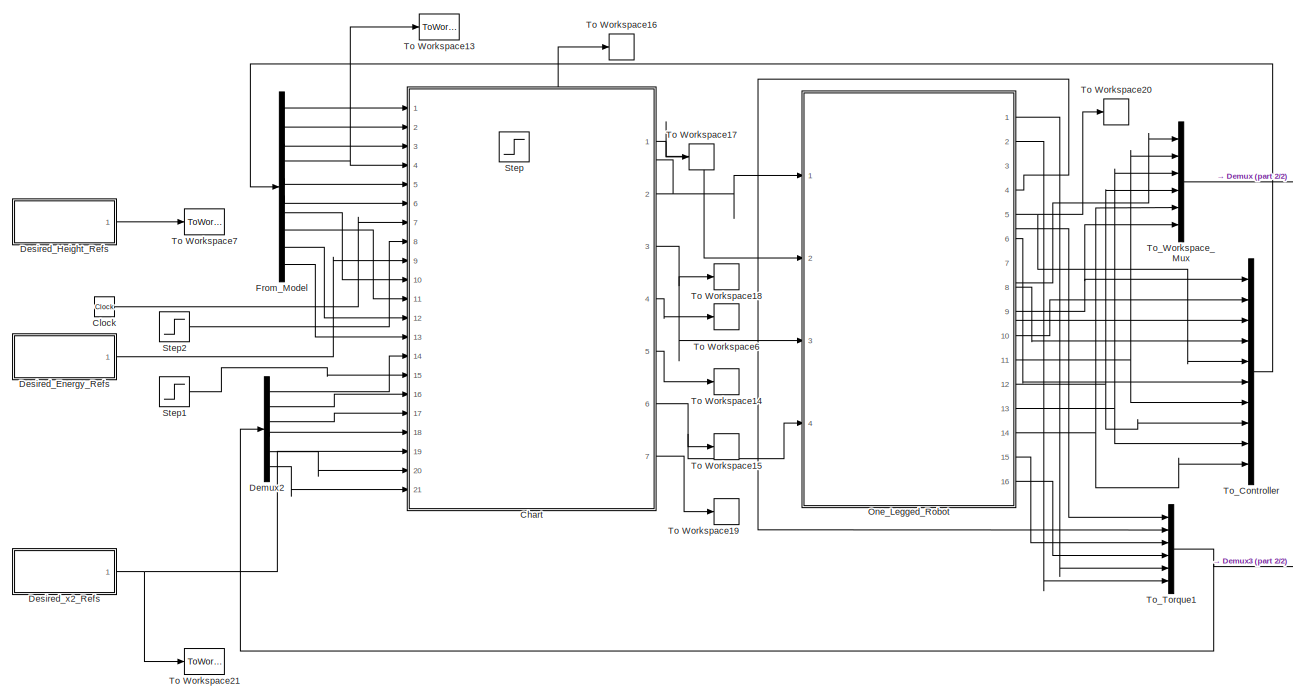
[diagram: root canvas - part 1/2, center side, full height]
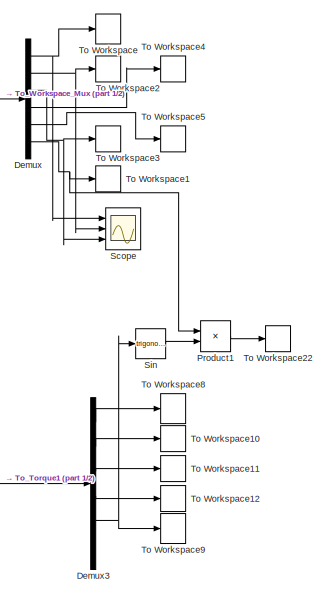
[diagram: root canvas - part 2/2, right side, full height]
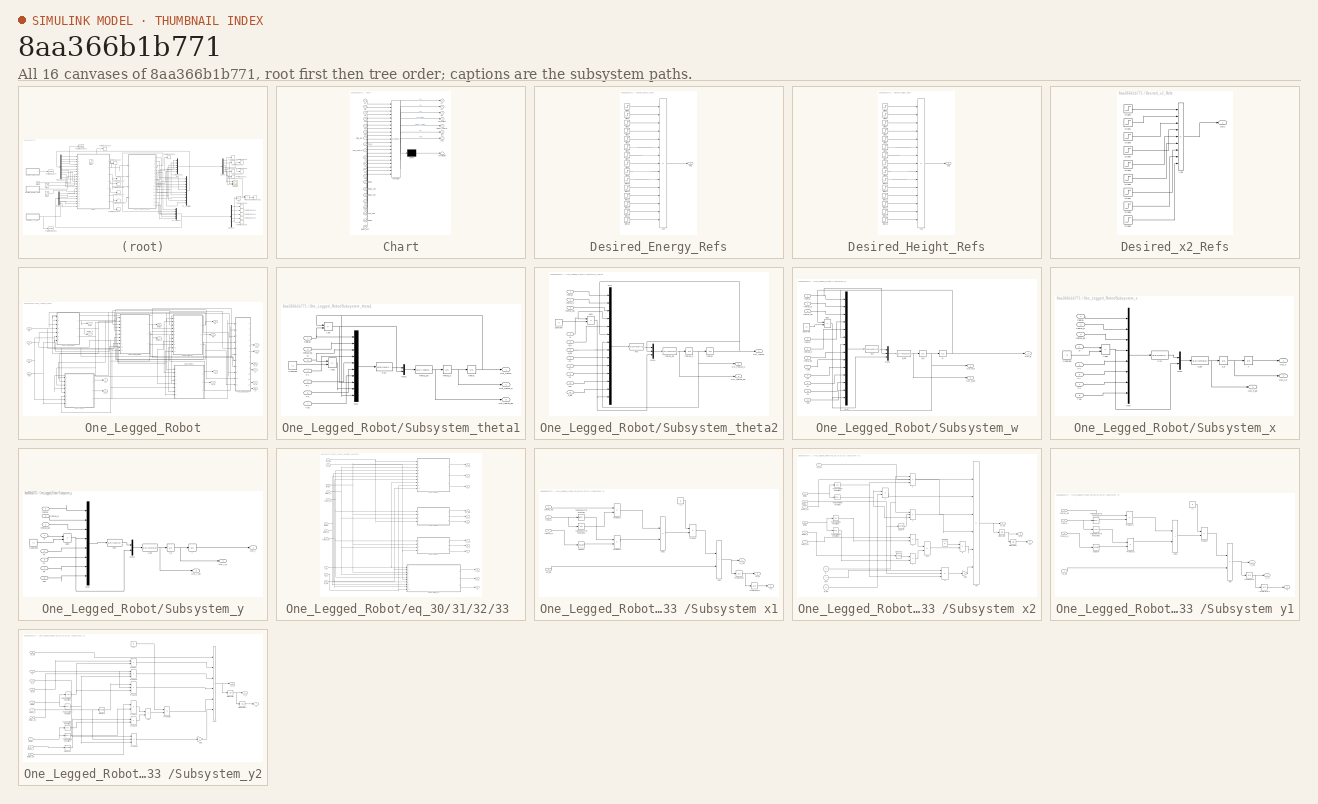
[diagram: thumbnail index - all 16 canvases of the model, root first then tree order]
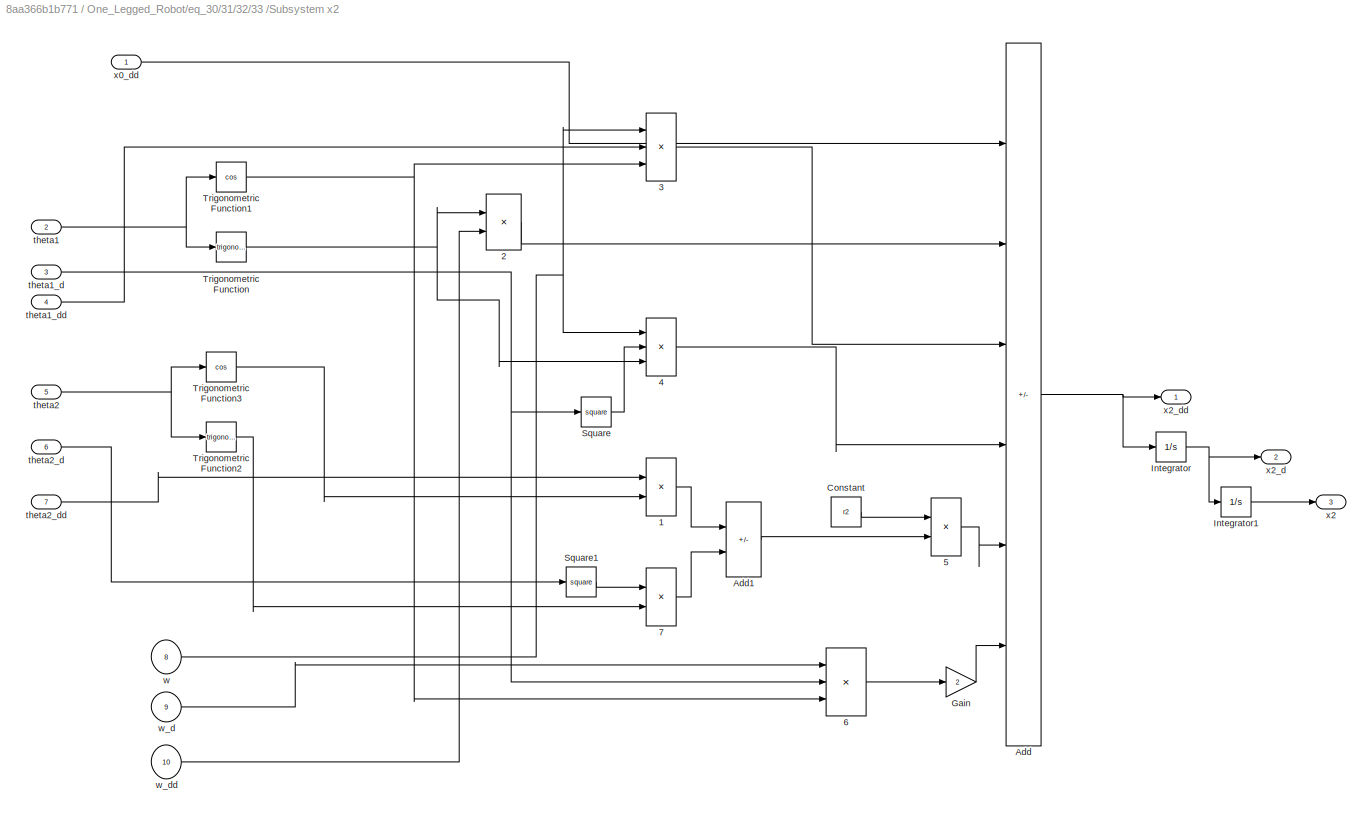
MODEL slx_8aa366b1b771
KIND model
CONFIG AbsTol = auto
CONFIG EnableMultiTasking = off
CONFIG FixedStep = 0.001
CONFIG MaxStep = auto
CONFIG MinStep = auto
CONFIG RelTol = 1e-3
CONFIG SampleTimeConstraint = Unconstrained
CONFIG Solver = FixedStepAuto
CONFIG SolverName = FixedStepAuto
CONFIG StartTime = 0.0
CONFIG StopTime = 2
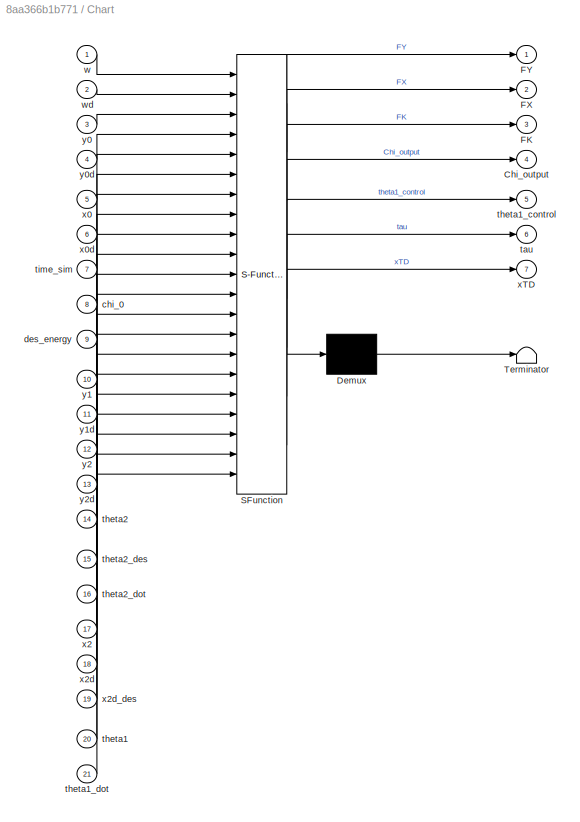
BLOCK [SubSystem] Chart
  ErrorFcn = Stateflow.Translate.translate
  PermitHierarchicalResolution = ExplicitOnly
  PortSchema = {"entries":[{"content":{"sides":[{"content":{"connectorIds":["In1","In2","In3","In4","In5","In6","In7","In8","In9","In10","In11","In12","In13","In14","In15","In16","In17","In18","In19","In20","In21"]},"type":"ConnectorPlacement.EquallySpacedRectSide","uuid":"d60879a0-12a6-4ea9-8b3c-a4e8171fc461"},{"content":{"connectorIds":["Out2","Out1","Out3","Out4","Out5","Out6","Out7"],"side":"RIGHT"},"type":"...<+416ch>
  Ports = [21, 7]
  RequestExecContextInheritance = off
  SFBlockType = Chart
  TreatAsAtomicUnit = on
BLOCK [Demux] Chart/ Demux 
  Outputs = 1
  Ports = [1, 1]
BLOCK [S-Function] Chart/ SFunction 
  EnableBusSupport = on
  FunctionName = sf_sfun
  PortCounts = [21 8]
  Ports = [21, 8]
  SFcnIsStateOwnerBlock = off
  SFunctionDeploymentMode = off
  Tag = Stateflow S-Function 3
BLOCK [Terminator] Chart/ Terminator 
BLOCK [Outport] Chart/Chi_output
  Port = 4
BLOCK [Outport] Chart/FK
  Port = 3
BLOCK [Outport] Chart/FX
  Port = 2
BLOCK [Outport] Chart/FY
BLOCK [Inport] Chart/chi_0
  Port = 8
BLOCK [Inport] Chart/des_energy
  Port = 9
BLOCK [Outport] Chart/tau
  Port = 6
BLOCK [Inport] Chart/theta1
  Port = 20
BLOCK [Outport] Chart/theta1_control
  Port = 5
BLOCK [Inport] Chart/theta1_dot
  Port = 21
BLOCK [Inport] Chart/theta2
  Port = 14
BLOCK [Inport] Chart/theta2_des
  Port = 15
BLOCK [Inport] Chart/theta2_dot
  Port = 16
BLOCK [Inport] Chart/time_sim
  Port = 7
BLOCK [Inport] Chart/w
BLOCK [Inport] Chart/wd
  Port = 2
BLOCK [Inport] Chart/x0
  Port = 5
BLOCK [Inport] Chart/x0d
  Port = 6
BLOCK [Inport] Chart/x2
  Port = 17
BLOCK [Inport] Chart/x2d
  Port = 18
BLOCK [Inport] Chart/x2d_des
  Port = 19
BLOCK [Outport] Chart/xTD
  Port = 7
BLOCK [Inport] Chart/y0
  Port = 3
BLOCK [Inport] Chart/y0d
  Port = 4
BLOCK [Inport] Chart/y1
  Port = 10
BLOCK [Inport] Chart/y1d
  Port = 11
BLOCK [Inport] Chart/y2
  Port = 12
BLOCK [Inport] Chart/y2d
  Port = 13
BLOCK [Clock] Clock
BLOCK [Demux] Demux
  Outputs = 6
  Ports = [1, 6]
BLOCK [Demux] Demux2
  Outputs = 6
  Ports = [1, 6]
BLOCK [Demux] Demux3
  Outputs = 6
  Ports = [1, 6]
BLOCK [SubSystem] Desired_Energy_Refs
  Ports = [0, 1]
  RequestExecContextInheritance = off
BLOCK [Sum] Desired_Energy_Refs/Add
  IconShape = rectangular
  Inputs = +-+-+-+-+-+-+-+
  Ports = [15, 1]
BLOCK [Outport] Desired_Energy_Refs/Out1
BLOCK [Step] Desired_Energy_Refs/Step1
  After = desired_energy2
  SampleTime = 0
  Time = T3_change
BLOCK [Step] Desired_Energy_Refs/Step10
  After = desired_energy5
  SampleTime = 0
  Time = T6_change
BLOCK [Step] Desired_Energy_Refs/Step11
  After = desired_energy6
  SampleTime = 0
  Time = T6_change
BLOCK [Step] Desired_Energy_Refs/Step12
  After = desired_energy6
  SampleTime = 0
  Time = T7_change
BLOCK [Step] Desired_Energy_Refs/Step13
  After = desired_energy7
  SampleTime = 0
  Time = T7_change
BLOCK [Step] Desired_Energy_Refs/Step14
  After = desired_energy7
  SampleTime = 0
  Time = T8_change
BLOCK [Step] Desired_Energy_Refs/Step15
  After = desired_energy8
  SampleTime = 0
  Time = T8_change
BLOCK [Step] Desired_Energy_Refs/Step2
  After = desired_energy3
  SampleTime = 0
  Time = T3_change
BLOCK [Step] Desired_Energy_Refs/Step3
  After = desired_energy3
  SampleTime = 0
  Time = T4_change
BLOCK [Step] Desired_Energy_Refs/Step4
  After = desired_energy
  SampleTime = 0
  Time = 0
BLOCK [Step] Desired_Energy_Refs/Step5
  After = desired_energy
  SampleTime = 0
  Time = T2_change
BLOCK [Step] Desired_Energy_Refs/Step6
  After = desired_energy2
  SampleTime = 0
  Time = T2_change
BLOCK [Step] Desired_Energy_Refs/Step7
  After = desired_energy4
  SampleTime = 0
  Time = T4_change
BLOCK [Step] Desired_Energy_Refs/Step8
  After = desired_energy4
  SampleTime = 0
  Time = T5_change
BLOCK [Step] Desired_Energy_Refs/Step9
  After = desired_energy5
  SampleTime = 0
  Time = T5_change
BLOCK [SubSystem] Desired_Height_Refs
  Ports = [0, 1]
  RequestExecContextInheritance = off
BLOCK [Sum] Desired_Height_Refs/Add
  IconShape = rectangular
  Inputs = +-+-+-+-+-+-+-+
  Ports = [15, 1]
BLOCK [Outport] Desired_Height_Refs/Out1
BLOCK [Step] Desired_Height_Refs/Step1
  After = H2
  SampleTime = 0
  Time = T3_change
BLOCK [Step] Desired_Height_Refs/Step10
  After = H5
  SampleTime = 0
  Time = T6_change
BLOCK [Step] Desired_Height_Refs/Step11
  After = H6
  SampleTime = 0
  Time = T6_change
BLOCK [Step] Desired_Height_Refs/Step12
  After = H6
  SampleTime = 0
  Time = T7_change
BLOCK [Step] Desired_Height_Refs/Step13
  After = H7
  SampleTime = 0
  Time = T7_change
BLOCK [Step] Desired_Height_Refs/Step14
  After = H7
  SampleTime = 0
  Time = T8_change
BLOCK [Step] Desired_Height_Refs/Step15
  After = H8
  SampleTime = 0
  Time = T8_change
BLOCK [Step] Desired_Height_Refs/Step2
  After = H3
  SampleTime = 0
  Time = T3_change
BLOCK [Step] Desired_Height_Refs/Step3
  After = H3
  SampleTime = 0
  Time = T4_change
BLOCK [Step] Desired_Height_Refs/Step4
  After = H
  SampleTime = 0
  Time = 0
BLOCK [Step] Desired_Height_Refs/Step5
  After = H
  SampleTime = 0
  Time = T2_change
BLOCK [Step] Desired_Height_Refs/Step6
  After = H2
  SampleTime = 0
  Time = T2_change
BLOCK [Step] Desired_Height_Refs/Step7
  After = H4
  SampleTime = 0
  Time = T4_change
BLOCK [Step] Desired_Height_Refs/Step8
  After = H4
  SampleTime = 0
  Time = T5_change
BLOCK [Step] Desired_Height_Refs/Step9
  After = H5
  SampleTime = 0
  Time = T5_change
BLOCK [SubSystem] Desired_x2_Refs
  Ports = [0, 1]
  RequestExecContextInheritance = off
BLOCK [Sum] Desired_x2_Refs/Add
  IconShape = rectangular
  Inputs = +-+-+-+-+
  Ports = [9, 1]
BLOCK [Outport] Desired_x2_Refs/Out1
BLOCK [Step] Desired_x2_Refs/Step1
  After = x2d_desired_1
  SampleTime = 0
  Time = start_2
BLOCK [Step] Desired_x2_Refs/Step2
  After = x2d_desired_2
  SampleTime = 0
  Time = start_3
BLOCK [Step] Desired_x2_Refs/Step3
  After = x2d_desired_3
  SampleTime = 0
  Time = start_3
BLOCK [Step] Desired_x2_Refs/Step4
  After = x2d_desired_1
  SampleTime = 0
  Time = start_1
BLOCK [Step] Desired_x2_Refs/Step5
  After = x2d_desired_3
  SampleTime = 0
  Time = start_4
BLOCK [Step] Desired_x2_Refs/Step6
  After = x2d_desired_2
  SampleTime = 0
  Time = start_2
BLOCK [Step] Desired_x2_Refs/Step7
  After = x2d_desired_4
  SampleTime = 0
  Time = start_4
BLOCK [Step] Desired_x2_Refs/Step8
  After = x2d_desired_4
  SampleTime = 0
  Time = start_5
BLOCK [Step] Desired_x2_Refs/Step9
  After = x2d_desired_5
  SampleTime = 0
  Time = start_5
BLOCK [Demux] From_Model
  Outputs = 10
  Ports = [1, 10]
BLOCK [SubSystem] One_Legged_Robot
  Ports = [4, 16]
  RequestExecContextInheritance = off
BLOCK [Inport] One_Legged_Robot/Fk
  Port = 3
BLOCK [Inport] One_Legged_Robot/Fx
BLOCK [Inport] One_Legged_Robot/Fy
  Port = 2
BLOCK [SubSystem] One_Legged_Robot/Subsystem_theta1
  Ports = [7, 3]
  RequestExecContextInheritance = off
BLOCK [Sum] One_Legged_Robot/Subsystem_theta1/Add
  IconShape = rectangular
  Inputs = -+
  Ports = [2, 1]
BLOCK [Sum] One_Legged_Robot/Subsystem_theta1/Add1
  IconShape = rectangular
  Inputs = +-
  Ports = [2, 1]
BLOCK [Constant] One_Legged_Robot/Subsystem_theta1/Constant
  Value = r1
BLOCK [Fcn] One_Legged_Robot/Subsystem_theta1/Fcn
  Expr = (u(9)*(u(6)*r2*sin(u(8))+u(7)))-(r2*cos(u(8))*(r1*u(5)*sin(u(10))-r1*u(4)*cos(u(10))-u(7)))-(I2*u(9)*u(2))
BLOCK [Inport] One_Legged_Robot/Subsystem_theta1/Fk
  Port = 6
BLOCK [Inport] One_Legged_Robot/Subsystem_theta1/Fx
  Port = 4
BLOCK [Inport] One_Legged_Robot/Subsystem_theta1/Fy
  Port = 5
BLOCK [Mux] One_Legged_Robot/Subsystem_theta1/Mux
  DisplayOption = bar
  Inputs = 10
  Ports = [10, 1]
BLOCK [Mux] One_Legged_Robot/Subsystem_theta1/Mux1
  DisplayOption = bar
  Inputs = 2
  Ports = [2, 1]
BLOCK [Outport] One_Legged_Robot/Subsystem_theta1/Out_theta1
BLOCK [Outport] One_Legged_Robot/Subsystem_theta1/Out_theta1_d
  Port = 2
BLOCK [Outport] One_Legged_Robot/Subsystem_theta1/Out_theta1_dd
  Port = 3
BLOCK [Inport] One_Legged_Robot/Subsystem_theta1/Tau
  Port = 7
BLOCK [Integrator] One_Legged_Robot/Subsystem_theta1/theta1
  InitialCondition = ini_theta1
  LowerSaturationLimit = -pi/2
  Ports = [1, 1]
  UpperSaturationLimit = pi/2
BLOCK [Integrator] One_Legged_Robot/Subsystem_theta1/theta1_d
  InitialCondition = ini_theta1_d
  LowerSaturationLimit = -pi/2
  Ports = [1, 1]
  UpperSaturationLimit = pi/2
BLOCK [Fcn] One_Legged_Robot/Subsystem_theta1/theta1_dd
  Expr = u(1)/(-cos(u(2))*I1*r2)
BLOCK [Inport] One_Legged_Robot/Subsystem_theta1/theta2
BLOCK [Inport] One_Legged_Robot/Subsystem_theta1/theta2_dd
  Port = 2
BLOCK [Inport] One_Legged_Robot/Subsystem_theta1/w
  Port = 3
BLOCK [SubSystem] One_Legged_Robot/Subsystem_theta2
  Ports = [11, 3]
  RequestExecContextInheritance = off
BLOCK [Sum] One_Legged_Robot/Subsystem_theta2/Add1
  IconShape = rectangular
  Inputs = +-
  Ports = [2, 1]
BLOCK [Constant] One_Legged_Robot/Subsystem_theta2/Constant
  Value = r1
BLOCK [Fcn] One_Legged_Robot/Subsystem_theta2/Fcn
  Expr = (u(14)*M2*((u(2)^2)*u(14)*sin(u(1))-2*u(2)*u(5)*cos(u(1))+r2*(u(7)^2)*sin(u(6))+r1*(u(2)^2)*sin(u(1))))-(r1*u(9)*(cos(u(1)))^2)+(cos(u(1))*(r1*u(10)*sin(u(1))-u(12)))+(u(11)*u(14)*sin(u(1)))-(M2*u(14)*u(13))-(cos(u(1))*(M2*u(14)*u(4)+I1)*u(3))-(M2*u(14)*sin(u(1))*u(8))
BLOCK [Inport] One_Legged_Robot/Subsystem_theta2/Fk
  Port = 9
BLOCK [Inport] One_Legged_Robot/Subsystem_theta2/Fx
  Port = 7
BLOCK [Inport] One_Legged_Robot/Subsystem_theta2/Fy
  Port = 8
BLOCK [Mux] One_Legged_Robot/Subsystem_theta2/Mux
  DisplayOption = bar
  Inputs = 14
  Ports = [14, 1]
BLOCK [Mux] One_Legged_Robot/Subsystem_theta2/Mux1
  DisplayOption = bar
  Inputs = 3
  Ports = [3, 1]
BLOCK [Outport] One_Legged_Robot/Subsystem_theta2/Out_theta2
BLOCK [Outport] One_Legged_Robot/Subsystem_theta2/Out_theta2_d
  Port = 2
BLOCK [Outport] One_Legged_Robot/Subsystem_theta2/Out_theta2_dd
  Port = 3
BLOCK [Inport] One_Legged_Robot/Subsystem_theta2/Tau
  Port = 10
BLOCK [Inport] One_Legged_Robot/Subsystem_theta2/theta1
BLOCK [Inport] One_Legged_Robot/Subsystem_theta2/theta1_d
  Port = 2
BLOCK [Inport] One_Legged_Robot/Subsystem_theta2/theta1_dd
  Port = 3
BLOCK [Integrator] One_Legged_Robot/Subsystem_theta2/theta2
  InitialCondition = ini_theta2
  Ports = [1, 1]
BLOCK [Integrator] One_Legged_Robot/Subsystem_theta2/theta2_d
  InitialCondition = ini_theta2_d
  Ports = [1, 1]
BLOCK [Fcn] One_Legged_Robot/Subsystem_theta2/theta2_dd
  Expr = u(1)/(M2*r2*u(3)*cos(u(2)))
BLOCK [Inport] One_Legged_Robot/Subsystem_theta2/w
  Port = 4
BLOCK [Inport] One_Legged_Robot/Subsystem_theta2/w_d
  Port = 5
BLOCK [Inport] One_Legged_Robot/Subsystem_theta2/w_dd
  Port = 6
BLOCK [Inport] One_Legged_Robot/Subsystem_theta2/x_dd
  Port = 11
BLOCK [SubSystem] One_Legged_Robot/Subsystem_w
  Ports = [11, 3]
  RequestExecContextInheritance = off
BLOCK [Sum] One_Legged_Robot/Subsystem_w/Add1
  IconShape = rectangular
  Inputs = +-
  Ports = [2, 1]
BLOCK [Constant] One_Legged_Robot/Subsystem_w/Constant
  Value = r1
BLOCK [Fcn] One_Legged_Robot/Subsystem_w/Fcn
  Expr = (u(14)*M2*((u(2)^2)*u(14)*cos(u(1))+2*u(2)*u(7)*sin(u(1))+r2*(u(5)^2)*cos(u(4))+r1*(u(2)^2)*cos(u(1))-g))+(r1*u(10)*cos(u(1))*sin(u(1)))-(sin(u(1))*(r1*u(11)*sin(u(1))-u(13)))+(u(12)*u(14)*cos(u(1)))+(sin(u(1))*(M2*u(14)*u(6)+I1)*u(3))-(M2*u(14)*u(9))+(M2*r2*u(14)*sin(u(4))*u(8))
BLOCK [Inport] One_Legged_Robot/Subsystem_w/Fk
  Port = 10
BLOCK [Inport] One_Legged_Robot/Subsystem_w/Fx
  Port = 8
BLOCK [Inport] One_Legged_Robot/Subsystem_w/Fy
  Port = 9
BLOCK [Mux] One_Legged_Robot/Subsystem_w/Mux
  DisplayOption = bar
  Inputs = 14
  Ports = [14, 1]
BLOCK [Mux] One_Legged_Robot/Subsystem_w/Mux1
  DisplayOption = bar
  Inputs = 3
  Ports = [3, 1]
BLOCK [Outport] One_Legged_Robot/Subsystem_w/Out_w
BLOCK [Outport] One_Legged_Robot/Subsystem_w/Out_w_d
  Port = 2
BLOCK [Outport] One_Legged_Robot/Subsystem_w/Out_w_dd
  Port = 3
BLOCK [Inport] One_Legged_Robot/Subsystem_w/Tau
  Port = 11
BLOCK [Inport] One_Legged_Robot/Subsystem_w/theta1
BLOCK [Inport] One_Legged_Robot/Subsystem_w/theta1_d
  Port = 2
BLOCK [Inport] One_Legged_Robot/Subsystem_w/theta1_dd
  Port = 3
BLOCK [Inport] One_Legged_Robot/Subsystem_w/theta2
  Port = 4
BLOCK [Inport] One_Legged_Robot/Subsystem_w/theta2_d
  Port = 5
BLOCK [Inport] One_Legged_Robot/Subsystem_w/theta_dd
  Port = 6
BLOCK [Integrator] One_Legged_Robot/Subsystem_w/w
  InitialCondition = ini_w
  Ports = [1, 1]
BLOCK [Integrator] One_Legged_Robot/Subsystem_w/w_d
  InitialCondition = ini_w_d
  Ports = [1, 1]
BLOCK [Fcn] One_Legged_Robot/Subsystem_w/w_dd
  Expr = u(1)/(M2*u(3)*cos(u(2)))
BLOCK [Inport] One_Legged_Robot/Subsystem_w/y_dd
  Port = 7
BLOCK [SubSystem] One_Legged_Robot/Subsystem_x
  Ports = [8, 3]
  RequestExecContextInheritance = off
BLOCK [Sum] One_Legged_Robot/Subsystem_x/Add1
  IconShape = rectangular
  Inputs = +-
  Ports = [2, 1]
BLOCK [Constant] One_Legged_Robot/Subsystem_x/Constant
  Value = r1
BLOCK [Fcn] One_Legged_Robot/Subsystem_x/Fcn
  Expr = (u(4)*(M1*r1*(u(2)^2)*sin(u(1))-u(7)*sin(u(1))+u(5)))-(cos(u(1))*(u(6)*r1*sin(u(1))-u(5)*r1*cos(u(1))-u(8)))-(cos(u(1))*(M1*r1*u(4)-I1)*u(3))
BLOCK [Inport] One_Legged_Robot/Subsystem_x/Fk
  Port = 7
BLOCK [Inport] One_Legged_Robot/Subsystem_x/Fx
  Port = 5
BLOCK [Inport] One_Legged_Robot/Subsystem_x/Fy
  Port = 6
BLOCK [Mux] One_Legged_Robot/Subsystem_x/Mux
  DisplayOption = bar
  Inputs = 8
  Ports = [8, 1]
BLOCK [Mux] One_Legged_Robot/Subsystem_x/Mux1
  DisplayOption = bar
  Inputs = 2
  Ports = [2, 1]
BLOCK [Outport] One_Legged_Robot/Subsystem_x/Out_x
BLOCK [Outport] One_Legged_Robot/Subsystem_x/Out_x_d
  Port = 2
BLOCK [Outport] One_Legged_Robot/Subsystem_x/Out_x_dd
  Port = 3
BLOCK [Inport] One_Legged_Robot/Subsystem_x/Tau
  Port = 8
BLOCK [Inport] One_Legged_Robot/Subsystem_x/theta1
BLOCK [Inport] One_Legged_Robot/Subsystem_x/theta1_d
  Port = 2
BLOCK [Inport] One_Legged_Robot/Subsystem_x/theta1_dd
  Port = 3
BLOCK [Inport] One_Legged_Robot/Subsystem_x/w
  Port = 4
BLOCK [Integrator] One_Legged_Robot/Subsystem_x/x
  InitialCondition = ini_x0
  Ports = [1, 1]
BLOCK [Integrator] One_Legged_Robot/Subsystem_x/x_d
  InitialCondition = ini_x0_d
  Ports = [1, 1]
BLOCK [Fcn] One_Legged_Robot/Subsystem_x/x_dd
  Expr = u(1)/(M1*u(2))
BLOCK [SubSystem] One_Legged_Robot/Subsystem_y
  Ports = [8, 3]
  RequestExecContextInheritance = off
BLOCK [Sum] One_Legged_Robot/Subsystem_y/Add1
  IconShape = rectangular
  Inputs = +-
  Ports = [2, 1]
BLOCK [Constant] One_Legged_Robot/Subsystem_y/Constant
  Value = r1
BLOCK [Fcn] One_Legged_Robot/Subsystem_y/Fcn
  Expr = (u(4)*(M1*r1*(u(2)^2)*cos(u(1))-u(7)*cos(u(1))+u(6)-M1*g))+(sin(u(1))*(u(6)*r1*sin(u(1))-u(5)*r1*cos(u(1))-u(8)))+(sin(u(1))*(M1*r1*u(4)-I1)*u(3))
BLOCK [Inport] One_Legged_Robot/Subsystem_y/Fk
  Port = 7
BLOCK [Inport] One_Legged_Robot/Subsystem_y/Fx
  Port = 5
BLOCK [Inport] One_Legged_Robot/Subsystem_y/Fy
  Port = 6
BLOCK [Mux] One_Legged_Robot/Subsystem_y/Mux
  DisplayOption = bar
  Inputs = 8
  Ports = [8, 1]
BLOCK [Mux] One_Legged_Robot/Subsystem_y/Mux1
  DisplayOption = bar
  Inputs = 2
  Ports = [2, 1]
BLOCK [Outport] One_Legged_Robot/Subsystem_y/Out_y
BLOCK [Outport] One_Legged_Robot/Subsystem_y/Out_y_d
  Port = 2
BLOCK [Outport] One_Legged_Robot/Subsystem_y/Out_y_dd
  Port = 3
BLOCK [Inport] One_Legged_Robot/Subsystem_y/Tau
  Port = 8
BLOCK [Inport] One_Legged_Robot/Subsystem_y/theta1
BLOCK [Inport] One_Legged_Robot/Subsystem_y/theta1_d
  Port = 2
BLOCK [Inport] One_Legged_Robot/Subsystem_y/theta1_dd
  Port = 3
BLOCK [Inport] One_Legged_Robot/Subsystem_y/w
  Port = 4
BLOCK [Integrator] One_Legged_Robot/Subsystem_y/y
  InitialCondition = ini_y0
  Ports = [1, 1]
BLOCK [Integrator] One_Legged_Robot/Subsystem_y/y_d
  InitialCondition = ini_y0_d
  Ports = [1, 1]
BLOCK [Fcn] One_Legged_Robot/Subsystem_y/y_dd
  Expr = u(1)/(M1*u(2))
BLOCK [Inport] One_Legged_Robot/Tau
  Port = 4
BLOCK [SubSystem] One_Legged_Robot/eq_30//31//32//33 
  Ports = [11, 12]
  RequestExecContextInheritance = off
BLOCK [SubSystem] One_Legged_Robot/eq_30//31//32//33 /Subsystem x1
  Ports = [4, 3]
  RequestExecContextInheritance = off
BLOCK [Sum] One_Legged_Robot/eq_30//31//32//33 /Subsystem x1/Add
  IconShape = rectangular
  Ports = [2, 1]
BLOCK [Sum] One_Legged_Robot/eq_30//31//32//33 /Subsystem x1/Add1
  IconShape = rectangular
  Inputs = +-
  Ports = [2, 1]
BLOCK [Integrator] One_Legged_Robot/eq_30//31//32//33 /Subsystem x1/Integrator
  InitialCondition = ini_x1_d
  Ports = [1, 1]
BLOCK [Integrator] One_Legged_Robot/eq_30//31//32//33 /Subsystem x1/Integrator1
  InitialCondition = ini_x1
  Ports = [1, 1]
BLOCK [Product] One_Legged_Robot/eq_30//31//32//33 /Subsystem x1/Product
  Ports = [2, 1]
BLOCK [Product] One_Legged_Robot/eq_30//31//32//33 /Subsystem x1/Product1
  Ports = [2, 1]
BLOCK [Product] One_Legged_Robot/eq_30//31//32//33 /Subsystem x1/Product2
  Ports = [2, 1]
BLOCK [Math] One_Legged_Robot/eq_30//31//32//33 /Subsystem x1/Square
  Operator = square
  Ports = [1, 1]
BLOCK [Trigonometry] One_Legged_Robot/eq_30//31//32//33 /Subsystem x1/Trigonometric Function
  Ports = [1, 1]
BLOCK [Trigonometry] One_Legged_Robot/eq_30//31//32//33 /Subsystem x1/Trigonometric Function1
  Operator = cos
  Ports = [1, 1]
BLOCK [Constant] One_Legged_Robot/eq_30//31//32//33 /Subsystem x1/r1
  Value = r1
BLOCK [Inport] One_Legged_Robot/eq_30//31//32//33 /Subsystem x1/theta1
  Port = 2
BLOCK [Inport] One_Legged_Robot/eq_30//31//32//33 /Subsystem x1/theta1_d
  Port = 3
BLOCK [Inport] One_Legged_Robot/eq_30//31//32//33 /Subsystem x1/theta1_dd 
BLOCK [Inport] One_Legged_Robot/eq_30//31//32//33 /Subsystem x1/x0_dd
  Port = 4
BLOCK [Outport] One_Legged_Robot/eq_30//31//32//33 /Subsystem x1/x1
  Port = 3
BLOCK [Outport] One_Legged_Robot/eq_30//31//32//33 /Subsystem x1/x1_d
  Port = 2
BLOCK [Outport] One_Legged_Robot/eq_30//31//32//33 /Subsystem x1/x1_dd
BLOCK [SubSystem] One_Legged_Robot/eq_30//31//32//33 /Subsystem x2
  Ports = [10, 3]
  RequestExecContextInheritance = off
BLOCK [Product] One_Legged_Robot/eq_30//31//32//33 /Subsystem x2/1
  Ports = [2, 1]
BLOCK [Product] One_Legged_Robot/eq_30//31//32//33 /Subsystem x2/2
  Ports = [2, 1]
BLOCK [Product] One_Legged_Robot/eq_30//31//32//33 /Subsystem x2/3
  Inputs = 3
  Ports = [3, 1]
BLOCK [Product] One_Legged_Robot/eq_30//31//32//33 /Subsystem x2/4
  Inputs = 3
  Ports = [3, 1]
BLOCK [Product] One_Legged_Robot/eq_30//31//32//33 /Subsystem x2/5
  Ports = [2, 1]
BLOCK [Product] One_Legged_Robot/eq_30//31//32//33 /Subsystem x2/6
  Inputs = 3
  Ports = [3, 1]
BLOCK [Product] One_Legged_Robot/eq_30//31//32//33 /Subsystem x2/7
  Ports = [2, 1]
BLOCK [Sum] One_Legged_Robot/eq_30//31//32//33 /Subsystem x2/Add
  IconShape = rectangular
  Inputs = +++-++
  Ports = [6, 1]
BLOCK [Sum] One_Legged_Robot/eq_30//31//32//33 /Subsystem x2/Add1
  IconShape = rectangular
  Inputs = +-
  Ports = [2, 1]
BLOCK [Constant] One_Legged_Robot/eq_30//31//32//33 /Subsystem x2/Constant
  Value = r2
BLOCK [Gain] One_Legged_Robot/eq_30//31//32//33 /Subsystem x2/Gain
  Gain = 2
BLOCK [Integrator] One_Legged_Robot/eq_30//31//32//33 /Subsystem x2/Integrator
  InitialCondition = ini_x2_d
  Ports = [1, 1]
BLOCK [Integrator] One_Legged_Robot/eq_30//31//32//33 /Subsystem x2/Integrator1
  InitialCondition = ini_x2
  Ports = [1, 1]
BLOCK [Math] One_Legged_Robot/eq_30//31//32//33 /Subsystem x2/Square
  Operator = square
  Ports = [1, 1]
BLOCK [Math] One_Legged_Robot/eq_30//31//32//33 /Subsystem x2/Square1
  Operator = square
  Ports = [1, 1]
BLOCK [Trigonometry] One_Legged_Robot/eq_30//31//32//33 /Subsystem x2/Trigonometric Function
  Ports = [1, 1]
BLOCK [Trigonometry] One_Legged_Robot/eq_30//31//32//33 /Subsystem x2/Trigonometric Function1
  Operator = cos
  Ports = [1, 1]
BLOCK [Trigonometry] One_Legged_Robot/eq_30//31//32//33 /Subsystem x2/Trigonometric Function2
  Ports = [1, 1]
BLOCK [Trigonometry] One_Legged_Robot/eq_30//31//32//33 /Subsystem x2/Trigonometric Function3
  Operator = cos
  Ports = [1, 1]
BLOCK [Inport] One_Legged_Robot/eq_30//31//32//33 /Subsystem x2/theta1
  Port = 2
BLOCK [Inport] One_Legged_Robot/eq_30//31//32//33 /Subsystem x2/theta1_d
  Port = 3
BLOCK [Inport] One_Legged_Robot/eq_30//31//32//33 /Subsystem x2/theta1_dd
  Port = 4
BLOCK [Inport] One_Legged_Robot/eq_30//31//32//33 /Subsystem x2/theta2
  Port = 5
BLOCK [Inport] One_Legged_Robot/eq_30//31//32//33 /Subsystem x2/theta2_d
  Port = 6
BLOCK [Inport] One_Legged_Robot/eq_30//31//32//33 /Subsystem x2/theta2_dd 
  Port = 7
BLOCK [Inport] One_Legged_Robot/eq_30//31//32//33 /Subsystem x2/w
  Port = 8
BLOCK [Inport] One_Legged_Robot/eq_30//31//32//33 /Subsystem x2/w_d
  Port = 9
BLOCK [Inport] One_Legged_Robot/eq_30//31//32//33 /Subsystem x2/w_dd
  Port = 10
BLOCK [Inport] One_Legged_Robot/eq_30//31//32//33 /Subsystem x2/x0_dd
BLOCK [Outport] One_Legged_Robot/eq_30//31//32//33 /Subsystem x2/x2
  Port = 3
BLOCK [Outport] One_Legged_Robot/eq_30//31//32//33 /Subsystem x2/x2_d
  Port = 2
BLOCK [Outport] One_Legged_Robot/eq_30//31//32//33 /Subsystem x2/x2_dd
BLOCK [SubSystem] One_Legged_Robot/eq_30//31//32//33 /Subsystem y1
  Ports = [4, 3]
  RequestExecContextInheritance = off
BLOCK [Sum] One_Legged_Robot/eq_30//31//32//33 /Subsystem y1/Add
  IconShape = rectangular
  Inputs = -+
  Ports = [2, 1]
BLOCK [Sum] One_Legged_Robot/eq_30//31//32//33 /Subsystem y1/Add1
  IconShape = rectangular
  Ports = [2, 1]
BLOCK [Integrator] One_Legged_Robot/eq_30//31//32//33 /Subsystem y1/Integrator
  InitialCondition = ini_y1_d
  Ports = [1, 1]
BLOCK [Integrator] One_Legged_Robot/eq_30//31//32//33 /Subsystem y1/Integrator1
  InitialCondition = ini_y1
  Ports = [1, 1]
BLOCK [Product] One_Legged_Robot/eq_30//31//32//33 /Subsystem y1/Product
  Ports = [2, 1]
BLOCK [Product] One_Legged_Robot/eq_30//31//32//33 /Subsystem y1/Product1
  Ports = [2, 1]
BLOCK [Product] One_Legged_Robot/eq_30//31//32//33 /Subsystem y1/Product2
  Ports = [2, 1]
BLOCK [Math] One_Legged_Robot/eq_30//31//32//33 /Subsystem y1/Square
  Operator = square
  Ports = [1, 1]
BLOCK [Trigonometry] One_Legged_Robot/eq_30//31//32//33 /Subsystem y1/Trigonometric Function
  Ports = [1, 1]
BLOCK [Trigonometry] One_Legged_Robot/eq_30//31//32//33 /Subsystem y1/Trigonometric Function1
  Operator = cos
  Ports = [1, 1]
BLOCK [Constant] One_Legged_Robot/eq_30//31//32//33 /Subsystem y1/r1
  Value = r1
BLOCK [Inport] One_Legged_Robot/eq_30//31//32//33 /Subsystem y1/theta1
  Port = 2
BLOCK [Inport] One_Legged_Robot/eq_30//31//32//33 /Subsystem y1/theta1_d
  Port = 3
BLOCK [Inport] One_Legged_Robot/eq_30//31//32//33 /Subsystem y1/theta1_dd 
BLOCK [Inport] One_Legged_Robot/eq_30//31//32//33 /Subsystem y1/y0_dd
  Port = 4
BLOCK [Outport] One_Legged_Robot/eq_30//31//32//33 /Subsystem y1/y1
  Port = 3
BLOCK [Outport] One_Legged_Robot/eq_30//31//32//33 /Subsystem y1/y1_d
  Port = 2
BLOCK [Outport] One_Legged_Robot/eq_30//31//32//33 /Subsystem y1/y1_dd
BLOCK [SubSystem] One_Legged_Robot/eq_30//31//32//33 /Subsystem_y2
  Ports = [10, 3]
  RequestExecContextInheritance = off
BLOCK [Sum] One_Legged_Robot/eq_30//31//32//33 /Subsystem_y2/Add
  IconShape = rectangular
  Ports = [2, 1]
BLOCK [Sum] One_Legged_Robot/eq_30//31//32//33 /Subsystem_y2/Add1
  IconShape = rectangular
  Inputs = ++----
  Ports = [6, 1]
BLOCK [Gain] One_Legged_Robot/eq_30//31//32//33 /Subsystem_y2/Gain
  Gain = 2
BLOCK [Integrator] One_Legged_Robot/eq_30//31//32//33 /Subsystem_y2/Integrator
  InitialCondition = ini_y2_d
  Ports = [1, 1]
BLOCK [Integrator] One_Legged_Robot/eq_30//31//32//33 /Subsystem_y2/Integrator1
  InitialCondition = ini_y2
  Ports = [1, 1]
BLOCK [Product] One_Legged_Robot/eq_30//31//32//33 /Subsystem_y2/Product
  Ports = [2, 1]
BLOCK [Product] One_Legged_Robot/eq_30//31//32//33 /Subsystem_y2/Product1
  Inputs = 3
  Ports = [3, 1]
BLOCK [Product] One_Legged_Robot/eq_30//31//32//33 /Subsystem_y2/Product2
  Inputs = 3
  Ports = [3, 1]
BLOCK [Product] One_Legged_Robot/eq_30//31//32//33 /Subsystem_y2/Product3
  Ports = [2, 1]
BLOCK [Product] One_Legged_Robot/eq_30//31//32//33 /Subsystem_y2/Product4
  Ports = [2, 1]
BLOCK [Product] One_Legged_Robot/eq_30//31//32//33 /Subsystem_y2/Product5
  Ports = [2, 1]
BLOCK [Product] One_Legged_Robot/eq_30//31//32//33 /Subsystem_y2/Product6
  Inputs = 3
  Ports = [3, 1]
BLOCK [Math] One_Legged_Robot/eq_30//31//32//33 /Subsystem_y2/Square
  Operator = square
  Ports = [1, 1]
BLOCK [Math] One_Legged_Robot/eq_30//31//32//33 /Subsystem_y2/Square1
  Operator = square
  Ports = [1, 1]
BLOCK [Trigonometry] One_Legged_Robot/eq_30//31//32//33 /Subsystem_y2/Trigonometric Function
  Ports = [1, 1]
BLOCK [Trigonometry] One_Legged_Robot/eq_30//31//32//33 /Subsystem_y2/Trigonometric Function1
  Operator = cos
  Ports = [1, 1]
BLOCK [Trigonometry] One_Legged_Robot/eq_30//31//32//33 /Subsystem_y2/Trigonometric Function2
  Ports = [1, 1]
BLOCK [Trigonometry] One_Legged_Robot/eq_30//31//32//33 /Subsystem_y2/Trigonometric Function3
  Operator = cos
  Ports = [1, 1]
BLOCK [Constant] One_Legged_Robot/eq_30//31//32//33 /Subsystem_y2/r2
  Value = r2
BLOCK [Inport] One_Legged_Robot/eq_30//31//32//33 /Subsystem_y2/theta1
  Port = 3
BLOCK [Inport] One_Legged_Robot/eq_30//31//32//33 /Subsystem_y2/theta1_d
  Port = 4
BLOCK [Inport] One_Legged_Robot/eq_30//31//32//33 /Subsystem_y2/theta1_dd
  Port = 5
BLOCK [Inport] One_Legged_Robot/eq_30//31//32//33 /Subsystem_y2/theta2
  Port = 7
BLOCK [Inport] One_Legged_Robot/eq_30//31//32//33 /Subsystem_y2/theta2_d
  Port = 8
BLOCK [Inport] One_Legged_Robot/eq_30//31//32//33 /Subsystem_y2/theta2_dd
  Port = 9
BLOCK [Inport] One_Legged_Robot/eq_30//31//32//33 /Subsystem_y2/w
BLOCK [Inport] One_Legged_Robot/eq_30//31//32//33 /Subsystem_y2/w_d
  Port = 10
BLOCK [Inport] One_Legged_Robot/eq_30//31//32//33 /Subsystem_y2/w_dd
  Port = 2
BLOCK [Inport] One_Legged_Robot/eq_30//31//32//33 /Subsystem_y2/y0_dd
  Port = 6
BLOCK [Outport] One_Legged_Robot/eq_30//31//32//33 /Subsystem_y2/y2
  Port = 3
BLOCK [Outport] One_Legged_Robot/eq_30//31//32//33 /Subsystem_y2/y2_d
  Port = 2
BLOCK [Outport] One_Legged_Robot/eq_30//31//32//33 /Subsystem_y2/y2_dd
BLOCK [Inport] One_Legged_Robot/eq_30//31//32//33 /theta1
  Port = 3
BLOCK [Inport] One_Legged_Robot/eq_30//31//32//33 /theta1_d
  Port = 4
BLOCK [Inport] One_Legged_Robot/eq_30//31//32//33 /theta1_dd
  Port = 5
BLOCK [Inport] One_Legged_Robot/eq_30//31//32//33 /theta2
  Port = 6
BLOCK [Inport] One_Legged_Robot/eq_30//31//32//33 /theta2_d
  Port = 7
BLOCK [Inport] One_Legged_Robot/eq_30//31//32//33 /theta2_dd
  Port = 8
BLOCK [Inport] One_Legged_Robot/eq_30//31//32//33 /w
  Port = 9
BLOCK [Inport] One_Legged_Robot/eq_30//31//32//33 /w_d
  Port = 10
BLOCK [Inport] One_Legged_Robot/eq_30//31//32//33 /w_dd
  Port = 11
BLOCK [Inport] One_Legged_Robot/eq_30//31//32//33 /x0_dd
BLOCK [Outport] One_Legged_Robot/eq_30//31//32//33 /x1
  Port = 3
BLOCK [Outport] One_Legged_Robot/eq_30//31//32//33 /x1_d
  Port = 2
BLOCK [Outport] One_Legged_Robot/eq_30//31//32//33 /x1_dd
BLOCK [Outport] One_Legged_Robot/eq_30//31//32//33 /x2
  NameLocation = top
  Port = 6
BLOCK [Outport] One_Legged_Robot/eq_30//31//32//33 /x2_d
  Port = 5
BLOCK [Outport] One_Legged_Robot/eq_30//31//32//33 /x2_dd
  NameLocation = top
  Port = 4
BLOCK [Inport] One_Legged_Robot/eq_30//31//32//33 /y0_dd
  Port = 2
BLOCK [Outport] One_Legged_Robot/eq_30//31//32//33 /y1
  Port = 9
BLOCK [Outport] One_Legged_Robot/eq_30//31//32//33 /y1_d
  Port = 8
BLOCK [Outport] One_Legged_Robot/eq_30//31//32//33 /y1_dd
  Port = 7
BLOCK [Outport] One_Legged_Robot/eq_30//31//32//33 /y2
  Port = 12
BLOCK [Outport] One_Legged_Robot/eq_30//31//32//33 /y2_d
  Port = 11
BLOCK [Outport] One_Legged_Robot/eq_30//31//32//33 /y2_dd
  Port = 10
BLOCK [Outport] One_Legged_Robot/theta1
BLOCK [Outport] One_Legged_Robot/theta1_d
  Port = 2
BLOCK [Outport] One_Legged_Robot/theta2
  Port = 3
BLOCK [Outport] One_Legged_Robot/theta2_d
  Port = 4
BLOCK [Outport] One_Legged_Robot/w
  Port = 9
BLOCK [Outport] One_Legged_Robot/wd
  Port = 10
BLOCK [Outport] One_Legged_Robot/x0
  Port = 5
BLOCK [Outport] One_Legged_Robot/x0_d
  Port = 6
BLOCK [Outport] One_Legged_Robot/x2
  Port = 15
BLOCK [Outport] One_Legged_Robot/x2d
  Port = 16
BLOCK [Outport] One_Legged_Robot/y0
  Port = 7
BLOCK [Outport] One_Legged_Robot/y0_d
  Port = 8
BLOCK [Outport] One_Legged_Robot/y1
  Port = 11
BLOCK [Outport] One_Legged_Robot/y1_d
  Port = 12
BLOCK [Outport] One_Legged_Robot/y2
  Port = 13
BLOCK [Outport] One_Legged_Robot/y2_d
  Port = 14
BLOCK [Product] Product1
  Ports = [2, 1]
BLOCK [Scope] Scope
  Floating = off
  NumInputPorts = 3
  Ports = [3]
  ScopeSpecificationString = Simulink.scopes.TimeScopeBlockCfg('CurrentConfiguration', extmgr.ConfigurationSet(extmgr.Configuration('Core','General UI',true),extmgr.Configuration('Core','Source UI',true),extmgr.Configuration('Sources','WiredSimulink',true,'DataLoggingVariableName','ScopeData1'),extmgr.Configuration('Visuals','Time Domain',true,'SerializedDisplays',{struct('MinYLimReal','-0.0562','MaxYLimReal','0.0592','YLabel...<+1452ch>
BLOCK [Trigonometry] Sin
  Ports = [1, 1]
BLOCK [Step] Step
  After = 0
  SampleTime = 0
  Time = 0
BLOCK [Step] Step1
  After = 0
  SampleTime = 0
  Time = 0
BLOCK [Step] Step2
  After = chi_0
  SampleTime = 0
  Time = 0
BLOCK [ToWorkspace] To Workspace
  FixptAsFi = on
  MaxDataPoints = inf
  Ports = [1]
  SampleTime = -1
  Save2DSignal = 2-D array (concatenate along first dimension)
  SaveFormat = Timeseries
  VariableName = y0
BLOCK [ToWorkspace] To Workspace1
  FixptAsFi = on
  MaxDataPoints = inf
  Ports = [1]
  SampleTime = -1
  Save2DSignal = 2-D array (concatenate along first dimension)
  SaveFormat = Timeseries
  VariableName = w
BLOCK [ToWorkspace] To Workspace10
  FixptAsFi = on
  MaxDataPoints = inf
  Ports = [1]
  SampleTime = -1
  Save2DSignal = 2-D array (concatenate along first dimension)
  SaveFormat = Timeseries
  VariableName = theta2d
BLOCK [ToWorkspace] To Workspace11
  FixptAsFi = on
  MaxDataPoints = inf
  Ports = [1]
  SampleTime = -1
  Save2DSignal = 2-D array (concatenate along first dimension)
  SaveFormat = Timeseries
  VariableName = x2
BLOCK [ToWorkspace] To Workspace12
  FixptAsFi = on
  MaxDataPoints = inf
  Ports = [1]
  SampleTime = -1
  Save2DSignal = 2-D array (concatenate along first dimension)
  SaveFormat = Timeseries
  VariableName = x2d
BLOCK [ToWorkspace] To Workspace13
  FixptAsFi = on
  MaxDataPoints = inf
  Ports = [1]
  SampleTime = -1
  SaveFormat = Timeseries
  VariableName = y0d
BLOCK [ToWorkspace] To Workspace14
  FixptAsFi = on
  MaxDataPoints = inf
  Ports = [1]
  SampleTime = -1
  Save2DSignal = 2-D array (concatenate along first dimension)
  SaveFormat = Timeseries
  VariableName = theta1_control
BLOCK [ToWorkspace] To Workspace15
  FixptAsFi = on
  MaxDataPoints = inf
  Ports = [1]
  SampleTime = -1
  Save2DSignal = 2-D array (concatenate along first dimension)
  SaveFormat = Timeseries
  VariableName = tau
BLOCK [ToWorkspace] To Workspace16
  FixptAsFi = on
  MaxDataPoints = inf
  Ports = [1]
  SampleTime = -1
  Save2DSignal = 2-D array (concatenate along first dimension)
  SaveFormat = Timeseries
  VariableName = Fx
BLOCK [ToWorkspace] To Workspace17
  FixptAsFi = on
  MaxDataPoints = inf
  Ports = [1]
  SampleTime = -1
  Save2DSignal = 2-D array (concatenate along first dimension)
  SaveFormat = Timeseries
  VariableName = Fy
BLOCK [ToWorkspace] To Workspace18
  FixptAsFi = on
  MaxDataPoints = inf
  Ports = [1]
  SampleTime = -1
  Save2DSignal = 2-D array (concatenate along first dimension)
  SaveFormat = Timeseries
  VariableName = Fk
BLOCK [ToWorkspace] To Workspace19
  FixptAsFi = on
  MaxDataPoints = inf
  Ports = [1]
  SampleTime = -1
  Save2DSignal = 2-D array (concatenate along first dimension)
  SaveFormat = Timeseries
  VariableName = xTD
BLOCK [ToWorkspace] To Workspace2
  FixptAsFi = on
  MaxDataPoints = inf
  Ports = [1]
  SampleTime = -1
  Save2DSignal = 2-D array (concatenate along first dimension)
  SaveFormat = Timeseries
  VariableName = y1
BLOCK [ToWorkspace] To Workspace20
  FixptAsFi = on
  MaxDataPoints = inf
  Ports = [1]
  SampleTime = -1
  Save2DSignal = 2-D array (concatenate along first dimension)
  SaveFormat = Timeseries
  VariableName = x0
BLOCK [ToWorkspace] To Workspace21
  FixptAsFi = on
  MaxDataPoints = inf
  Ports = [1]
  SampleTime = -1
  SaveFormat = Timeseries
  VariableName = Desired_x2d
BLOCK [ToWorkspace] To Workspace22
  FixptAsFi = on
  MaxDataPoints = inf
  Ports = [1]
  SampleTime = -1
  Save2DSignal = 2-D array (concatenate along first dimension)
  SaveFormat = Timeseries
  VariableName = wsintheta1
BLOCK [ToWorkspace] To Workspace3
  FixptAsFi = on
  MaxDataPoints = inf
  Ports = [1]
  SampleTime = -1
  Save2DSignal = 2-D array (concatenate along first dimension)
  SaveFormat = Timeseries
  VariableName = y2
BLOCK [ToWorkspace] To Workspace4
  FixptAsFi = on
  MaxDataPoints = inf
  Ports = [1]
  SampleTime = -1
  Save2DSignal = 2-D array (concatenate along first dimension)
  SaveFormat = Timeseries
  VariableName = y1d
BLOCK [ToWorkspace] To Workspace5
  FixptAsFi = on
  MaxDataPoints = inf
  Ports = [1]
  SampleTime = -1
  Save2DSignal = 2-D array (concatenate along first dimension)
  SaveFormat = Timeseries
  VariableName = y2d
BLOCK [ToWorkspace] To Workspace6
  FixptAsFi = on
  MaxDataPoints = inf
  Ports = [1]
  SampleTime = -1
  Save2DSignal = 2-D array (concatenate along first dimension)
  SaveFormat = Timeseries
  VariableName = chi
BLOCK [ToWorkspace] To Workspace7
  FixptAsFi = on
  MaxDataPoints = inf
  Ports = [1]
  SampleTime = -1
  SaveFormat = Timeseries
  VariableName = Desired_H
BLOCK [ToWorkspace] To Workspace8
  FixptAsFi = on
  MaxDataPoints = inf
  Ports = [1]
  SampleTime = -1
  Save2DSignal = 2-D array (concatenate along first dimension)
  SaveFormat = Timeseries
  VariableName = theta2
BLOCK [ToWorkspace] To Workspace9
  FixptAsFi = on
  MaxDataPoints = inf
  Ports = [1]
  SampleTime = -1
  Save2DSignal = 2-D array (concatenate along first dimension)
  SaveFormat = Timeseries
  VariableName = theta1
BLOCK [Mux] To_Controller
  DisplayOption = bar
  Inputs = 10
  Ports = [10, 1]
BLOCK [Mux] To_Torque1
  DisplayOption = bar
  Inputs = 6
  Ports = [6, 1]
BLOCK [Mux] To_Workspace_Mux
  DisplayOption = bar
  Inputs = 6
  Ports = [6, 1]
NET Chart:1 -> One_Legged_Robot:2, To Workspace17:1
NET Chart:2 -> One_Legged_Robot:1, To Workspace16:1
NET Chart:3 -> One_Legged_Robot:3, To Workspace18:1
LINE Chart:4 -> To Workspace6:1
LINE Chart:5 -> To Workspace14:1
NET Chart:6 -> One_Legged_Robot:4, To Workspace15:1
LINE Chart:7 -> To Workspace19:1
LINE Clock:1 -> Chart:7
LINE Demux2:1 -> Chart:14
LINE Demux2:2 -> Chart:16
LINE Demux2:3 -> Chart:17
LINE Demux2:4 -> Chart:18
LINE Demux2:5 -> Chart:20
LINE Demux2:6 -> Chart:21
LINE Demux3:1 -> To Workspace8:1
LINE Demux3:2 -> To Workspace10:1
LINE Demux3:3 -> To Workspace11:1
LINE Demux3:4 -> To Workspace12:1
NET Demux3:5 -> Sin:1, To Workspace9:1
NET Demux:1 -> Scope:1, To Workspace:1
NET Demux:2 -> Scope:2, To Workspace2:1
NET Demux:3 -> Scope:3, To Workspace3:1
LINE Demux:4 -> To Workspace4:1
LINE Demux:5 -> To Workspace5:1
NET Demux:6 -> Product1:1, To Workspace1:1
LINE Desired_Energy_Refs/Add:1 -> Desired_Energy_Refs/Out1:1
LINE Desired_Energy_Refs/Step10:1 -> Desired_Energy_Refs/Add:10
LINE Desired_Energy_Refs/Step11:1 -> Desired_Energy_Refs/Add:11
LINE Desired_Energy_Refs/Step12:1 -> Desired_Energy_Refs/Add:12
LINE Desired_Energy_Refs/Step13:1 -> Desired_Energy_Refs/Add:13
LINE Desired_Energy_Refs/Step14:1 -> Desired_Energy_Refs/Add:14
LINE Desired_Energy_Refs/Step15:1 -> Desired_Energy_Refs/Add:15
LINE Desired_Energy_Refs/Step1:1 -> Desired_Energy_Refs/Add:4
LINE Desired_Energy_Refs/Step2:1 -> Desired_Energy_Refs/Add:5
LINE Desired_Energy_Refs/Step3:1 -> Desired_Energy_Refs/Add:6
LINE Desired_Energy_Refs/Step4:1 -> Desired_Energy_Refs/Add:1
LINE Desired_Energy_Refs/Step5:1 -> Desired_Energy_Refs/Add:2
LINE Desired_Energy_Refs/Step6:1 -> Desired_Energy_Refs/Add:3
LINE Desired_Energy_Refs/Step7:1 -> Desired_Energy_Refs/Add:7
LINE Desired_Energy_Refs/Step8:1 -> Desired_Energy_Refs/Add:8
LINE Desired_Energy_Refs/Step9:1 -> Desired_Energy_Refs/Add:9
LINE Desired_Energy_Refs:1 -> Chart:9
LINE Desired_Height_Refs/Add:1 -> Desired_Height_Refs/Out1:1
LINE Desired_Height_Refs/Step10:1 -> Desired_Height_Refs/Add:10
LINE Desired_Height_Refs/Step11:1 -> Desired_Height_Refs/Add:11
LINE Desired_Height_Refs/Step12:1 -> Desired_Height_Refs/Add:12
LINE Desired_Height_Refs/Step13:1 -> Desired_Height_Refs/Add:13
LINE Desired_Height_Refs/Step14:1 -> Desired_Height_Refs/Add:14
LINE Desired_Height_Refs/Step15:1 -> Desired_Height_Refs/Add:15
LINE Desired_Height_Refs/Step1:1 -> Desired_Height_Refs/Add:4
LINE Desired_Height_Refs/Step2:1 -> Desired_Height_Refs/Add:5
LINE Desired_Height_Refs/Step3:1 -> Desired_Height_Refs/Add:6
LINE Desired_Height_Refs/Step4:1 -> Desired_Height_Refs/Add:1
LINE Desired_Height_Refs/Step5:1 -> Desired_Height_Refs/Add:2
LINE Desired_Height_Refs/Step6:1 -> Desired_Height_Refs/Add:3
LINE Desired_Height_Refs/Step7:1 -> Desired_Height_Refs/Add:7
LINE Desired_Height_Refs/Step8:1 -> Desired_Height_Refs/Add:8
LINE Desired_Height_Refs/Step9:1 -> Desired_Height_Refs/Add:9
LINE Desired_Height_Refs:1 -> To Workspace7:1
LINE Desired_x2_Refs/Add:1 -> Desired_x2_Refs/Out1:1
LINE Desired_x2_Refs/Step1:1 -> Desired_x2_Refs/Add:2
LINE Desired_x2_Refs/Step2:1 -> Desired_x2_Refs/Add:4
LINE Desired_x2_Refs/Step3:1 -> Desired_x2_Refs/Add:5
LINE Desired_x2_Refs/Step4:1 -> Desired_x2_Refs/Add:1
LINE Desired_x2_Refs/Step5:1 -> Desired_x2_Refs/Add:6
LINE Desired_x2_Refs/Step6:1 -> Desired_x2_Refs/Add:3
LINE Desired_x2_Refs/Step7:1 -> Desired_x2_Refs/Add:7
LINE Desired_x2_Refs/Step8:1 -> Desired_x2_Refs/Add:8
LINE Desired_x2_Refs/Step9:1 -> Desired_x2_Refs/Add:9
NET Desired_x2_Refs:1 -> Chart:19, To Workspace21:1
LINE From_Model:1 -> Chart:1
LINE From_Model:10 -> Chart:13
LINE From_Model:2 -> Chart:2
LINE From_Model:3 -> Chart:3
NET From_Model:4 -> Chart:4, To Workspace13:1
LINE From_Model:5 -> Chart:5
LINE From_Model:6 -> Chart:6
LINE From_Model:7 -> Chart:10
LINE From_Model:8 -> Chart:11
LINE From_Model:9 -> Chart:12
NET One_Legged_Robot/Fk:1 -> One_Legged_Robot/Subsystem_theta1:6, One_Legged_Robot/Subsystem_theta2:9, One_Legged_Robot/Subsystem_w:10, One_Legged_Robot/Subsystem_x:7, One_Legged_Robot/Subsystem_y:7
NET One_Legged_Robot/Fx:1 -> One_Legged_Robot/Subsystem_theta1:4, One_Legged_Robot/Subsystem_theta2:7, One_Legged_Robot/Subsystem_w:8, One_Legged_Robot/Subsystem_x:5, One_Legged_Robot/Subsystem_y:5
NET One_Legged_Robot/Fy:1 -> One_Legged_Robot/Subsystem_theta1:5, One_Legged_Robot/Subsystem_theta2:8, One_Legged_Robot/Subsystem_w:9, One_Legged_Robot/Subsystem_x:6, One_Legged_Robot/Subsystem_y:6
LINE One_Legged_Robot/Subsystem_theta1/Add1:1 -> One_Legged_Robot/Subsystem_theta1/Mux:9
NET One_Legged_Robot/Subsystem_theta1/Add:1 -> One_Legged_Robot/Subsystem_theta1/Mux1:2, One_Legged_Robot/Subsystem_theta1/Mux:8
LINE One_Legged_Robot/Subsystem_theta1/Constant:1 -> One_Legged_Robot/Subsystem_theta1/Add1:2
LINE One_Legged_Robot/Subsystem_theta1/Fcn:1 -> One_Legged_Robot/Subsystem_theta1/Mux1:1
LINE One_Legged_Robot/Subsystem_theta1/Fk:1 -> One_Legged_Robot/Subsystem_theta1/Mux:6
LINE One_Legged_Robot/Subsystem_theta1/Fx:1 -> One_Legged_Robot/Subsystem_theta1/Mux:4
LINE One_Legged_Robot/Subsystem_theta1/Fy:1 -> One_Legged_Robot/Subsystem_theta1/Mux:5
LINE One_Legged_Robot/Subsystem_theta1/Mux1:1 -> One_Legged_Robot/Subsystem_theta1/theta1_dd:1
LINE One_Legged_Robot/Subsystem_theta1/Mux:1 -> One_Legged_Robot/Subsystem_theta1/Fcn:1
LINE One_Legged_Robot/Subsystem_theta1/Tau:1 -> One_Legged_Robot/Subsystem_theta1/Mux:7
NET One_Legged_Robot/Subsystem_theta1/theta1:1 -> One_Legged_Robot/Subsystem_theta1/Add:1, One_Legged_Robot/Subsystem_theta1/Mux:10, One_Legged_Robot/Subsystem_theta1/Out_theta1:1
NET One_Legged_Robot/Subsystem_theta1/theta1_d:1 -> One_Legged_Robot/Subsystem_theta1/Out_theta1_d:1, One_Legged_Robot/Subsystem_theta1/theta1:1
NET One_Legged_Robot/Subsystem_theta1/theta1_dd:1 -> One_Legged_Robot/Subsystem_theta1/Out_theta1_dd:1, One_Legged_Robot/Subsystem_theta1/theta1_d:1
NET One_Legged_Robot/Subsystem_theta1/theta2:1 -> One_Legged_Robot/Subsystem_theta1/Add:2, One_Legged_Robot/Subsystem_theta1/Mux:1
LINE One_Legged_Robot/Subsystem_theta1/theta2_dd:1 -> One_Legged_Robot/Subsystem_theta1/Mux:2
NET One_Legged_Robot/Subsystem_theta1/w:1 -> One_Legged_Robot/Subsystem_theta1/Add1:1, One_Legged_Robot/Subsystem_theta1/Mux:3
NET One_Legged_Robot/Subsystem_theta1:1 -> One_Legged_Robot/Subsystem_theta2:1, One_Legged_Robot/Subsystem_w:1, One_Legged_Robot/Subsystem_x:1, One_Legged_Robot/Subsystem_y:1, One_Legged_Robot/eq_30//31//32//33 :3, One_Legged_Robot/theta1:1
NET One_Legged_Robot/Subsystem_theta1:2 -> One_Legged_Robot/Subsystem_theta2:2, One_Legged_Robot/Subsystem_w:2, One_Legged_Robot/Subsystem_x:2, One_Legged_Robot/Subsystem_y:2, One_Legged_Robot/eq_30//31//32//33 :4, One_Legged_Robot/theta1_d:1
NET One_Legged_Robot/Subsystem_theta1:3 -> One_Legged_Robot/Subsystem_theta2:3, One_Legged_Robot/Subsystem_w:3, One_Legged_Robot/Subsystem_x:3, One_Legged_Robot/Subsystem_y:3, One_Legged_Robot/eq_30//31//32//33 :5
NET One_Legged_Robot/Subsystem_theta2/Add1:1 -> One_Legged_Robot/Subsystem_theta2/Mux1:3, One_Legged_Robot/Subsystem_theta2/Mux:14
LINE One_Legged_Robot/Subsystem_theta2/Constant:1 -> One_Legged_Robot/Subsystem_theta2/Add1:2
LINE One_Legged_Robot/Subsystem_theta2/Fcn:1 -> One_Legged_Robot/Subsystem_theta2/Mux1:1
LINE One_Legged_Robot/Subsystem_theta2/Fk:1 -> One_Legged_Robot/Subsystem_theta2/Mux:11
LINE One_Legged_Robot/Subsystem_theta2/Fx:1 -> One_Legged_Robot/Subsystem_theta2/Mux:9
LINE One_Legged_Robot/Subsystem_theta2/Fy:1 -> One_Legged_Robot/Subsystem_theta2/Mux:10
LINE One_Legged_Robot/Subsystem_theta2/Mux1:1 -> One_Legged_Robot/Subsystem_theta2/theta2_dd:1
LINE One_Legged_Robot/Subsystem_theta2/Mux:1 -> One_Legged_Robot/Subsystem_theta2/Fcn:1
LINE One_Legged_Robot/Subsystem_theta2/Tau:1 -> One_Legged_Robot/Subsystem_theta2/Mux:12
LINE One_Legged_Robot/Subsystem_theta2/theta1:1 -> One_Legged_Robot/Subsystem_theta2/Mux:1
LINE One_Legged_Robot/Subsystem_theta2/theta1_d:1 -> One_Legged_Robot/Subsystem_theta2/Mux:2
LINE One_Legged_Robot/Subsystem_theta2/theta1_dd:1 -> One_Legged_Robot/Subsystem_theta2/Mux:3
NET One_Legged_Robot/Subsystem_theta2/theta2:1 -> One_Legged_Robot/Subsystem_theta2/Mux1:2, One_Legged_Robot/Subsystem_theta2/Mux:6, One_Legged_Robot/Subsystem_theta2/Out_theta2:1
NET One_Legged_Robot/Subsystem_theta2/theta2_d:1 -> One_Legged_Robot/Subsystem_theta2/Mux:7, One_Legged_Robot/Subsystem_theta2/Out_theta2_d:1, One_Legged_Robot/Subsystem_theta2/theta2:1
NET One_Legged_Robot/Subsystem_theta2/theta2_dd:1 -> One_Legged_Robot/Subsystem_theta2/Out_theta2_dd:1, One_Legged_Robot/Subsystem_theta2/theta2_d:1
NET One_Legged_Robot/Subsystem_theta2/w:1 -> One_Legged_Robot/Subsystem_theta2/Add1:1, One_Legged_Robot/Subsystem_theta2/Mux:4
LINE One_Legged_Robot/Subsystem_theta2/w_d:1 -> One_Legged_Robot/Subsystem_theta2/Mux:5
LINE One_Legged_Robot/Subsystem_theta2/w_dd:1 -> One_Legged_Robot/Subsystem_theta2/Mux:8
LINE One_Legged_Robot/Subsystem_theta2/x_dd:1 -> One_Legged_Robot/Subsystem_theta2/Mux:13
NET One_Legged_Robot/Subsystem_theta2:1 -> One_Legged_Robot/Subsystem_theta1:1, One_Legged_Robot/Subsystem_w:4, One_Legged_Robot/eq_30//31//32//33 :6, One_Legged_Robot/theta2:1
NET One_Legged_Robot/Subsystem_theta2:2 -> One_Legged_Robot/Subsystem_w:5, One_Legged_Robot/eq_30//31//32//33 :7, One_Legged_Robot/theta2_d:1
NET One_Legged_Robot/Subsystem_theta2:3 -> One_Legged_Robot/Subsystem_theta1:2, One_Legged_Robot/Subsystem_w:6, One_Legged_Robot/eq_30//31//32//33 :8
NET One_Legged_Robot/Subsystem_w/Add1:1 -> One_Legged_Robot/Subsystem_w/Mux1:3, One_Legged_Robot/Subsystem_w/Mux:14
LINE One_Legged_Robot/Subsystem_w/Constant:1 -> One_Legged_Robot/Subsystem_w/Add1:2
LINE One_Legged_Robot/Subsystem_w/Fcn:1 -> One_Legged_Robot/Subsystem_w/Mux1:1
LINE One_Legged_Robot/Subsystem_w/Fk:1 -> One_Legged_Robot/Subsystem_w/Mux:12
LINE One_Legged_Robot/Subsystem_w/Fx:1 -> One_Legged_Robot/Subsystem_w/Mux:10
LINE One_Legged_Robot/Subsystem_w/Fy:1 -> One_Legged_Robot/Subsystem_w/Mux:11
LINE One_Legged_Robot/Subsystem_w/Mux1:1 -> One_Legged_Robot/Subsystem_w/w_dd:1
LINE One_Legged_Robot/Subsystem_w/Mux:1 -> One_Legged_Robot/Subsystem_w/Fcn:1
LINE One_Legged_Robot/Subsystem_w/Tau:1 -> One_Legged_Robot/Subsystem_w/Mux:13
NET One_Legged_Robot/Subsystem_w/theta1:1 -> One_Legged_Robot/Subsystem_w/Mux1:2, One_Legged_Robot/Subsystem_w/Mux:1
LINE One_Legged_Robot/Subsystem_w/theta1_d:1 -> One_Legged_Robot/Subsystem_w/Mux:2
LINE One_Legged_Robot/Subsystem_w/theta1_dd:1 -> One_Legged_Robot/Subsystem_w/Mux:3
LINE One_Legged_Robot/Subsystem_w/theta2:1 -> One_Legged_Robot/Subsystem_w/Mux:4
LINE One_Legged_Robot/Subsystem_w/theta2_d:1 -> One_Legged_Robot/Subsystem_w/Mux:5
LINE One_Legged_Robot/Subsystem_w/theta_dd:1 -> One_Legged_Robot/Subsystem_w/Mux:8
NET One_Legged_Robot/Subsystem_w/w:1 -> One_Legged_Robot/Subsystem_w/Add1:1, One_Legged_Robot/Subsystem_w/Mux:6, One_Legged_Robot/Subsystem_w/Out_w:1
NET One_Legged_Robot/Subsystem_w/w_d:1 -> One_Legged_Robot/Subsystem_w/Mux:7, One_Legged_Robot/Subsystem_w/Out_w_d:1, One_Legged_Robot/Subsystem_w/w:1
NET One_Legged_Robot/Subsystem_w/w_dd:1 -> One_Legged_Robot/Subsystem_w/Out_w_dd:1, One_Legged_Robot/Subsystem_w/w_d:1
LINE One_Legged_Robot/Subsystem_w/y_dd:1 -> One_Legged_Robot/Subsystem_w/Mux:9
NET One_Legged_Robot/Subsystem_w:1 -> One_Legged_Robot/Subsystem_theta1:3, One_Legged_Robot/Subsystem_theta2:4, One_Legged_Robot/Subsystem_x:4, One_Legged_Robot/Subsystem_y:4, One_Legged_Robot/eq_30//31//32//33 :9, One_Legged_Robot/w:1
NET One_Legged_Robot/Subsystem_w:2 -> One_Legged_Robot/Subsystem_theta2:5, One_Legged_Robot/eq_30//31//32//33 :10, One_Legged_Robot/wd:1
NET One_Legged_Robot/Subsystem_w:3 -> One_Legged_Robot/Subsystem_theta2:6, One_Legged_Robot/eq_30//31//32//33 :11
NET One_Legged_Robot/Subsystem_x/Add1:1 -> One_Legged_Robot/Subsystem_x/Mux1:2, One_Legged_Robot/Subsystem_x/Mux:4
LINE One_Legged_Robot/Subsystem_x/Constant:1 -> One_Legged_Robot/Subsystem_x/Add1:2
LINE One_Legged_Robot/Subsystem_x/Fcn:1 -> One_Legged_Robot/Subsystem_x/Mux1:1
LINE One_Legged_Robot/Subsystem_x/Fk:1 -> One_Legged_Robot/Subsystem_x/Mux:7
LINE One_Legged_Robot/Subsystem_x/Fx:1 -> One_Legged_Robot/Subsystem_x/Mux:5
LINE One_Legged_Robot/Subsystem_x/Fy:1 -> One_Legged_Robot/Subsystem_x/Mux:6
LINE One_Legged_Robot/Subsystem_x/Mux1:1 -> One_Legged_Robot/Subsystem_x/x_dd:1
LINE One_Legged_Robot/Subsystem_x/Mux:1 -> One_Legged_Robot/Subsystem_x/Fcn:1
LINE One_Legged_Robot/Subsystem_x/Tau:1 -> One_Legged_Robot/Subsystem_x/Mux:8
LINE One_Legged_Robot/Subsystem_x/theta1:1 -> One_Legged_Robot/Subsystem_x/Mux:1
LINE One_Legged_Robot/Subsystem_x/theta1_d:1 -> One_Legged_Robot/Subsystem_x/Mux:2
LINE One_Legged_Robot/Subsystem_x/theta1_dd:1 -> One_Legged_Robot/Subsystem_x/Mux:3
LINE One_Legged_Robot/Subsystem_x/w:1 -> One_Legged_Robot/Subsystem_x/Add1:1
LINE One_Legged_Robot/Subsystem_x/x:1 -> One_Legged_Robot/Subsystem_x/Out_x:1
NET One_Legged_Robot/Subsystem_x/x_d:1 -> One_Legged_Robot/Subsystem_x/Out_x_d:1, One_Legged_Robot/Subsystem_x/x:1
NET One_Legged_Robot/Subsystem_x/x_dd:1 -> One_Legged_Robot/Subsystem_x/Out_x_dd:1, One_Legged_Robot/Subsystem_x/x_d:1
LINE One_Legged_Robot/Subsystem_x:1 -> One_Legged_Robot/x0:1
LINE One_Legged_Robot/Subsystem_x:2 -> One_Legged_Robot/x0_d:1
NET One_Legged_Robot/Subsystem_x:3 -> One_Legged_Robot/Subsystem_theta2:11, One_Legged_Robot/eq_30//31//32//33 :1
NET One_Legged_Robot/Subsystem_y/Add1:1 -> One_Legged_Robot/Subsystem_y/Mux1:2, One_Legged_Robot/Subsystem_y/Mux:4
LINE One_Legged_Robot/Subsystem_y/Constant:1 -> One_Legged_Robot/Subsystem_y/Add1:2
LINE One_Legged_Robot/Subsystem_y/Fcn:1 -> One_Legged_Robot/Subsystem_y/Mux1:1
LINE One_Legged_Robot/Subsystem_y/Fk:1 -> One_Legged_Robot/Subsystem_y/Mux:7
LINE One_Legged_Robot/Subsystem_y/Fx:1 -> One_Legged_Robot/Subsystem_y/Mux:5
LINE One_Legged_Robot/Subsystem_y/Fy:1 -> One_Legged_Robot/Subsystem_y/Mux:6
LINE One_Legged_Robot/Subsystem_y/Mux1:1 -> One_Legged_Robot/Subsystem_y/y_dd:1
LINE One_Legged_Robot/Subsystem_y/Mux:1 -> One_Legged_Robot/Subsystem_y/Fcn:1
LINE One_Legged_Robot/Subsystem_y/Tau:1 -> One_Legged_Robot/Subsystem_y/Mux:8
LINE One_Legged_Robot/Subsystem_y/theta1:1 -> One_Legged_Robot/Subsystem_y/Mux:1
LINE One_Legged_Robot/Subsystem_y/theta1_d:1 -> One_Legged_Robot/Subsystem_y/Mux:2
LINE One_Legged_Robot/Subsystem_y/theta1_dd:1 -> One_Legged_Robot/Subsystem_y/Mux:3
LINE One_Legged_Robot/Subsystem_y/w:1 -> One_Legged_Robot/Subsystem_y/Add1:1
LINE One_Legged_Robot/Subsystem_y/y:1 -> One_Legged_Robot/Subsystem_y/Out_y:1
NET One_Legged_Robot/Subsystem_y/y_d:1 -> One_Legged_Robot/Subsystem_y/Out_y_d:1, One_Legged_Robot/Subsystem_y/y:1
NET One_Legged_Robot/Subsystem_y/y_dd:1 -> One_Legged_Robot/Subsystem_y/Out_y_dd:1, One_Legged_Robot/Subsystem_y/y_d:1
LINE One_Legged_Robot/Subsystem_y:1 -> One_Legged_Robot/y0:1
LINE One_Legged_Robot/Subsystem_y:2 -> One_Legged_Robot/y0_d:1
NET One_Legged_Robot/Subsystem_y:3 -> One_Legged_Robot/Subsystem_w:7, One_Legged_Robot/eq_30//31//32//33 :2
NET One_Legged_Robot/Tau:1 -> One_Legged_Robot/Subsystem_theta1:7, One_Legged_Robot/Subsystem_theta2:10, One_Legged_Robot/Subsystem_w:11, One_Legged_Robot/Subsystem_x:8, One_Legged_Robot/Subsystem_y:8
LINE One_Legged_Robot/eq_30//31//32//33 /Subsystem x1/Add1:1 -> One_Legged_Robot/eq_30//31//32//33 /Subsystem x1/Product:2
NET One_Legged_Robot/eq_30//31//32//33 /Subsystem x1/Add:1 -> One_Legged_Robot/eq_30//31//32//33 /Subsystem x1/Integrator:1, One_Legged_Robot/eq_30//31//32//33 /Subsystem x1/x1_dd:1
LINE One_Legged_Robot/eq_30//31//32//33 /Subsystem x1/Integrator1:1 -> One_Legged_Robot/eq_30//31//32//33 /Subsystem x1/x1:1
NET One_Legged_Robot/eq_30//31//32//33 /Subsystem x1/Integrator:1 -> One_Legged_Robot/eq_30//31//32//33 /Subsystem x1/Integrator1:1, One_Legged_Robot/eq_30//31//32//33 /Subsystem x1/x1_d:1
LINE One_Legged_Robot/eq_30//31//32//33 /Subsystem x1/Product1:1 -> One_Legged_Robot/eq_30//31//32//33 /Subsystem x1/Add1:1
LINE One_Legged_Robot/eq_30//31//32//33 /Subsystem x1/Product2:1 -> One_Legged_Robot/eq_30//31//32//33 /Subsystem x1/Add1:2
LINE One_Legged_Robot/eq_30//31//32//33 /Subsystem x1/Product:1 -> One_Legged_Robot/eq_30//31//32//33 /Subsystem x1/Add:1
LINE One_Legged_Robot/eq_30//31//32//33 /Subsystem x1/Square:1 -> One_Legged_Robot/eq_30//31//32//33 /Subsystem x1/Product2:2
LINE One_Legged_Robot/eq_30//31//32//33 /Subsystem x1/Trigonometric Function1:1 -> One_Legged_Robot/eq_30//31//32//33 /Subsystem x1/Product1:2
LINE One_Legged_Robot/eq_30//31//32//33 /Subsystem x1/Trigonometric Function:1 -> One_Legged_Robot/eq_30//31//32//33 /Subsystem x1/Product2:1
LINE One_Legged_Robot/eq_30//31//32//33 /Subsystem x1/r1:1 -> One_Legged_Robot/eq_30//31//32//33 /Subsystem x1/Product:1
NET One_Legged_Robot/eq_30//31//32//33 /Subsystem x1/theta1:1 -> One_Legged_Robot/eq_30//31//32//33 /Subsystem x1/Trigonometric Function1:1, One_Legged_Robot/eq_30//31//32//33 /Subsystem x1/Trigonometric Function:1
LINE One_Legged_Robot/eq_30//31//32//33 /Subsystem x1/theta1_d:1 -> One_Legged_Robot/eq_30//31//32//33 /Subsystem x1/Square:1
LINE One_Legged_Robot/eq_30//31//32//33 /Subsystem x1/theta1_dd :1 -> One_Legged_Robot/eq_30//31//32//33 /Subsystem x1/Product1:1
LINE One_Legged_Robot/eq_30//31//32//33 /Subsystem x1/x0_dd:1 -> One_Legged_Robot/eq_30//31//32//33 /Subsystem x1/Add:2
LINE One_Legged_Robot/eq_30//31//32//33 /Subsystem x1:1 -> One_Legged_Robot/eq_30//31//32//33 /x1_dd:1
LINE One_Legged_Robot/eq_30//31//32//33 /Subsystem x1:2 -> One_Legged_Robot/eq_30//31//32//33 /x1_d:1
LINE One_Legged_Robot/eq_30//31//32//33 /Subsystem x1:3 -> One_Legged_Robot/eq_30//31//32//33 /x1:1
LINE One_Legged_Robot/eq_30//31//32//33 /Subsystem x2/1:1 -> One_Legged_Robot/eq_30//31//32//33 /Subsystem x2/Add1:1
LINE One_Legged_Robot/eq_30//31//32//33 /Subsystem x2/2:1 -> One_Legged_Robot/eq_30//31//32//33 /Subsystem x2/Add:2
LINE One_Legged_Robot/eq_30//31//32//33 /Subsystem x2/3:1 -> One_Legged_Robot/eq_30//31//32//33 /Subsystem x2/Add:3
LINE One_Legged_Robot/eq_30//31//32//33 /Subsystem x2/4:1 -> One_Legged_Robot/eq_30//31//32//33 /Subsystem x2/Add:4
LINE One_Legged_Robot/eq_30//31//32//33 /Subsystem x2/5:1 -> One_Legged_Robot/eq_30//31//32//33 /Subsystem x2/Add:5
LINE One_Legged_Robot/eq_30//31//32//33 /Subsystem x2/6:1 -> One_Legged_Robot/eq_30//31//32//33 /Subsystem x2/Gain:1
LINE One_Legged_Robot/eq_30//31//32//33 /Subsystem x2/7:1 -> One_Legged_Robot/eq_30//31//32//33 /Subsystem x2/Add1:2
LINE One_Legged_Robot/eq_30//31//32//33 /Subsystem x2/Add1:1 -> One_Legged_Robot/eq_30//31//32//33 /Subsystem x2/5:2
NET One_Legged_Robot/eq_30//31//32//33 /Subsystem x2/Add:1 -> One_Legged_Robot/eq_30//31//32//33 /Subsystem x2/Integrator:1, One_Legged_Robot/eq_30//31//32//33 /Subsystem x2/x2_dd:1
LINE One_Legged_Robot/eq_30//31//32//33 /Subsystem x2/Constant:1 -> One_Legged_Robot/eq_30//31//32//33 /Subsystem x2/5:1
LINE One_Legged_Robot/eq_30//31//32//33 /Subsystem x2/Gain:1 -> One_Legged_Robot/eq_30//31//32//33 /Subsystem x2/Add:6
LINE One_Legged_Robot/eq_30//31//32//33 /Subsystem x2/Integrator1:1 -> One_Legged_Robot/eq_30//31//32//33 /Subsystem x2/x2:1
NET One_Legged_Robot/eq_30//31//32//33 /Subsystem x2/Integrator:1 -> One_Legged_Robot/eq_30//31//32//33 /Subsystem x2/Integrator1:1, One_Legged_Robot/eq_30//31//32//33 /Subsystem x2/x2_d:1
LINE One_Legged_Robot/eq_30//31//32//33 /Subsystem x2/Square1:1 -> One_Legged_Robot/eq_30//31//32//33 /Subsystem x2/7:1
LINE One_Legged_Robot/eq_30//31//32//33 /Subsystem x2/Square:1 -> One_Legged_Robot/eq_30//31//32//33 /Subsystem x2/4:2
NET One_Legged_Robot/eq_30//31//32//33 /Subsystem x2/Trigonometric Function1:1 -> One_Legged_Robot/eq_30//31//32//33 /Subsystem x2/3:3, One_Legged_Robot/eq_30//31//32//33 /Subsystem x2/6:3
LINE One_Legged_Robot/eq_30//31//32//33 /Subsystem x2/Trigonometric Function2:1 -> One_Legged_Robot/eq_30//31//32//33 /Subsystem x2/7:2
LINE One_Legged_Robot/eq_30//31//32//33 /Subsystem x2/Trigonometric Function3:1 -> One_Legged_Robot/eq_30//31//32//33 /Subsystem x2/1:2
NET One_Legged_Robot/eq_30//31//32//33 /Subsystem x2/Trigonometric Function:1 -> One_Legged_Robot/eq_30//31//32//33 /Subsystem x2/2:1, One_Legged_Robot/eq_30//31//32//33 /Subsystem x2/4:3
NET One_Legged_Robot/eq_30//31//32//33 /Subsystem x2/theta1:1 -> One_Legged_Robot/eq_30//31//32//33 /Subsystem x2/Trigonometric Function1:1, One_Legged_Robot/eq_30//31//32//33 /Subsystem x2/Trigonometric Function:1
NET One_Legged_Robot/eq_30//31//32//33 /Subsystem x2/theta1_d:1 -> One_Legged_Robot/eq_30//31//32//33 /Subsystem x2/6:2, One_Legged_Robot/eq_30//31//32//33 /Subsystem x2/Square:1
LINE One_Legged_Robot/eq_30//31//32//33 /Subsystem x2/theta1_dd:1 -> One_Legged_Robot/eq_30//31//32//33 /Subsystem x2/3:2
NET One_Legged_Robot/eq_30//31//32//33 /Subsystem x2/theta2:1 -> One_Legged_Robot/eq_30//31//32//33 /Subsystem x2/Trigonometric Function2:1, One_Legged_Robot/eq_30//31//32//33 /Subsystem x2/Trigonometric Function3:1
LINE One_Legged_Robot/eq_30//31//32//33 /Subsystem x2/theta2_d:1 -> One_Legged_Robot/eq_30//31//32//33 /Subsystem x2/Square1:1
LINE One_Legged_Robot/eq_30//31//32//33 /Subsystem x2/theta2_dd :1 -> One_Legged_Robot/eq_30//31//32//33 /Subsystem x2/1:1
NET One_Legged_Robot/eq_30//31//32//33 /Subsystem x2/w:1 -> One_Legged_Robot/eq_30//31//32//33 /Subsystem x2/3:1, One_Legged_Robot/eq_30//31//32//33 /Subsystem x2/4:1
LINE One_Legged_Robot/eq_30//31//32//33 /Subsystem x2/w_d:1 -> One_Legged_Robot/eq_30//31//32//33 /Subsystem x2/6:1
LINE One_Legged_Robot/eq_30//31//32//33 /Subsystem x2/w_dd:1 -> One_Legged_Robot/eq_30//31//32//33 /Subsystem x2/2:2
LINE One_Legged_Robot/eq_30//31//32//33 /Subsystem x2/x0_dd:1 -> One_Legged_Robot/eq_30//31//32//33 /Subsystem x2/Add:1
LINE One_Legged_Robot/eq_30//31//32//33 /Subsystem x2:1 -> One_Legged_Robot/eq_30//31//32//33 /x2_dd:1
LINE One_Legged_Robot/eq_30//31//32//33 /Subsystem x2:2 -> One_Legged_Robot/eq_30//31//32//33 /x2_d:1
LINE One_Legged_Robot/eq_30//31//32//33 /Subsystem x2:3 -> One_Legged_Robot/eq_30//31//32//33 /x2:1
LINE One_Legged_Robot/eq_30//31//32//33 /Subsystem y1/Add1:1 -> One_Legged_Robot/eq_30//31//32//33 /Subsystem y1/Product:2
NET One_Legged_Robot/eq_30//31//32//33 /Subsystem y1/Add:1 -> One_Legged_Robot/eq_30//31//32//33 /Subsystem y1/Integrator:1, One_Legged_Robot/eq_30//31//32//33 /Subsystem y1/y1_dd:1
LINE One_Legged_Robot/eq_30//31//32//33 /Subsystem y1/Integrator1:1 -> One_Legged_Robot/eq_30//31//32//33 /Subsystem y1/y1:1
NET One_Legged_Robot/eq_30//31//32//33 /Subsystem y1/Integrator:1 -> One_Legged_Robot/eq_30//31//32//33 /Subsystem y1/Integrator1:1, One_Legged_Robot/eq_30//31//32//33 /Subsystem y1/y1_d:1
LINE One_Legged_Robot/eq_30//31//32//33 /Subsystem y1/Product1:1 -> One_Legged_Robot/eq_30//31//32//33 /Subsystem y1/Add1:1
LINE One_Legged_Robot/eq_30//31//32//33 /Subsystem y1/Product2:1 -> One_Legged_Robot/eq_30//31//32//33 /Subsystem y1/Add1:2
LINE One_Legged_Robot/eq_30//31//32//33 /Subsystem y1/Product:1 -> One_Legged_Robot/eq_30//31//32//33 /Subsystem y1/Add:1
LINE One_Legged_Robot/eq_30//31//32//33 /Subsystem y1/Square:1 -> One_Legged_Robot/eq_30//31//32//33 /Subsystem y1/Product2:2
LINE One_Legged_Robot/eq_30//31//32//33 /Subsystem y1/Trigonometric Function1:1 -> One_Legged_Robot/eq_30//31//32//33 /Subsystem y1/Product2:1
LINE One_Legged_Robot/eq_30//31//32//33 /Subsystem y1/Trigonometric Function:1 -> One_Legged_Robot/eq_30//31//32//33 /Subsystem y1/Product1:2
LINE One_Legged_Robot/eq_30//31//32//33 /Subsystem y1/r1:1 -> One_Legged_Robot/eq_30//31//32//33 /Subsystem y1/Product:1
NET One_Legged_Robot/eq_30//31//32//33 /Subsystem y1/theta1:1 -> One_Legged_Robot/eq_30//31//32//33 /Subsystem y1/Trigonometric Function1:1, One_Legged_Robot/eq_30//31//32//33 /Subsystem y1/Trigonometric Function:1
LINE One_Legged_Robot/eq_30//31//32//33 /Subsystem y1/theta1_d:1 -> One_Legged_Robot/eq_30//31//32//33 /Subsystem y1/Square:1
LINE One_Legged_Robot/eq_30//31//32//33 /Subsystem y1/theta1_dd :1 -> One_Legged_Robot/eq_30//31//32//33 /Subsystem y1/Product1:1
LINE One_Legged_Robot/eq_30//31//32//33 /Subsystem y1/y0_dd:1 -> One_Legged_Robot/eq_30//31//32//33 /Subsystem y1/Add:2
LINE One_Legged_Robot/eq_30//31//32//33 /Subsystem y1:1 -> One_Legged_Robot/eq_30//31//32//33 /y1_dd:1
LINE One_Legged_Robot/eq_30//31//32//33 /Subsystem y1:2 -> One_Legged_Robot/eq_30//31//32//33 /y1_d:1
LINE One_Legged_Robot/eq_30//31//32//33 /Subsystem y1:3 -> One_Legged_Robot/eq_30//31//32//33 /y1:1
NET One_Legged_Robot/eq_30//31//32//33 /Subsystem_y2/Add1:1 -> One_Legged_Robot/eq_30//31//32//33 /Subsystem_y2/Integrator:1, One_Legged_Robot/eq_30//31//32//33 /Subsystem_y2/y2_dd:1
LINE One_Legged_Robot/eq_30//31//32//33 /Subsystem_y2/Add:1 -> One_Legged_Robot/eq_30//31//32//33 /Subsystem_y2/Product5:2
LINE One_Legged_Robot/eq_30//31//32//33 /Subsystem_y2/Gain:1 -> One_Legged_Robot/eq_30//31//32//33 /Subsystem_y2/Add1:6
LINE One_Legged_Robot/eq_30//31//32//33 /Subsystem_y2/Integrator1:1 -> One_Legged_Robot/eq_30//31//32//33 /Subsystem_y2/y2:1
NET One_Legged_Robot/eq_30//31//32//33 /Subsystem_y2/Integrator:1 -> One_Legged_Robot/eq_30//31//32//33 /Subsystem_y2/Integrator1:1, One_Legged_Robot/eq_30//31//32//33 /Subsystem_y2/y2_d:1
LINE One_Legged_Robot/eq_30//31//32//33 /Subsystem_y2/Product1:1 -> One_Legged_Robot/eq_30//31//32//33 /Subsystem_y2/Add1:3
LINE One_Legged_Robot/eq_30//31//32//33 /Subsystem_y2/Product2:1 -> One_Legged_Robot/eq_30//31//32//33 /Subsystem_y2/Add1:4
LINE One_Legged_Robot/eq_30//31//32//33 /Subsystem_y2/Product3:1 -> One_Legged_Robot/eq_30//31//32//33 /Subsystem_y2/Add:1
LINE One_Legged_Robot/eq_30//31//32//33 /Subsystem_y2/Product4:1 -> One_Legged_Robot/eq_30//31//32//33 /Subsystem_y2/Add:2
LINE One_Legged_Robot/eq_30//31//32//33 /Subsystem_y2/Product5:1 -> One_Legged_Robot/eq_30//31//32//33 /Subsystem_y2/Add1:5
LINE One_Legged_Robot/eq_30//31//32//33 /Subsystem_y2/Product6:1 -> One_Legged_Robot/eq_30//31//32//33 /Subsystem_y2/Gain:1
LINE One_Legged_Robot/eq_30//31//32//33 /Subsystem_y2/Product:1 -> One_Legged_Robot/eq_30//31//32//33 /Subsystem_y2/Add1:2
LINE One_Legged_Robot/eq_30//31//32//33 /Subsystem_y2/Square1:1 -> One_Legged_Robot/eq_30//31//32//33 /Subsystem_y2/Product4:1
LINE One_Legged_Robot/eq_30//31//32//33 /Subsystem_y2/Square:1 -> One_Legged_Robot/eq_30//31//32//33 /Subsystem_y2/Product2:1
NET One_Legged_Robot/eq_30//31//32//33 /Subsystem_y2/Trigonometric Function1:1 -> One_Legged_Robot/eq_30//31//32//33 /Subsystem_y2/Product2:3, One_Legged_Robot/eq_30//31//32//33 /Subsystem_y2/Product:2
LINE One_Legged_Robot/eq_30//31//32//33 /Subsystem_y2/Trigonometric Function2:1 -> One_Legged_Robot/eq_30//31//32//33 /Subsystem_y2/Product3:2
LINE One_Legged_Robot/eq_30//31//32//33 /Subsystem_y2/Trigonometric Function3:1 -> One_Legged_Robot/eq_30//31//32//33 /Subsystem_y2/Product4:2
NET One_Legged_Robot/eq_30//31//32//33 /Subsystem_y2/Trigonometric Function:1 -> One_Legged_Robot/eq_30//31//32//33 /Subsystem_y2/Product1:3, One_Legged_Robot/eq_30//31//32//33 /Subsystem_y2/Product6:3
LINE One_Legged_Robot/eq_30//31//32//33 /Subsystem_y2/r2:1 -> One_Legged_Robot/eq_30//31//32//33 /Subsystem_y2/Product5:1
NET One_Legged_Robot/eq_30//31//32//33 /Subsystem_y2/theta1:1 -> One_Legged_Robot/eq_30//31//32//33 /Subsystem_y2/Trigonometric Function1:1, One_Legged_Robot/eq_30//31//32//33 /Subsystem_y2/Trigonometric Function:1
NET One_Legged_Robot/eq_30//31//32//33 /Subsystem_y2/theta1_d:1 -> One_Legged_Robot/eq_30//31//32//33 /Subsystem_y2/Product6:2, One_Legged_Robot/eq_30//31//32//33 /Subsystem_y2/Square:1
LINE One_Legged_Robot/eq_30//31//32//33 /Subsystem_y2/theta1_dd:1 -> One_Legged_Robot/eq_30//31//32//33 /Subsystem_y2/Product1:2
NET One_Legged_Robot/eq_30//31//32//33 /Subsystem_y2/theta2:1 -> One_Legged_Robot/eq_30//31//32//33 /Subsystem_y2/Trigonometric Function2:1, One_Legged_Robot/eq_30//31//32//33 /Subsystem_y2/Trigonometric Function3:1
LINE One_Legged_Robot/eq_30//31//32//33 /Subsystem_y2/theta2_d:1 -> One_Legged_Robot/eq_30//31//32//33 /Subsystem_y2/Square1:1
LINE One_Legged_Robot/eq_30//31//32//33 /Subsystem_y2/theta2_dd:1 -> One_Legged_Robot/eq_30//31//32//33 /Subsystem_y2/Product3:1
NET One_Legged_Robot/eq_30//31//32//33 /Subsystem_y2/w:1 -> One_Legged_Robot/eq_30//31//32//33 /Subsystem_y2/Product1:1, One_Legged_Robot/eq_30//31//32//33 /Subsystem_y2/Product2:2
LINE One_Legged_Robot/eq_30//31//32//33 /Subsystem_y2/w_d:1 -> One_Legged_Robot/eq_30//31//32//33 /Subsystem_y2/Product6:1
LINE One_Legged_Robot/eq_30//31//32//33 /Subsystem_y2/w_dd:1 -> One_Legged_Robot/eq_30//31//32//33 /Subsystem_y2/Product:1
LINE One_Legged_Robot/eq_30//31//32//33 /Subsystem_y2/y0_dd:1 -> One_Legged_Robot/eq_30//31//32//33 /Subsystem_y2/Add1:1
LINE One_Legged_Robot/eq_30//31//32//33 /Subsystem_y2:1 -> One_Legged_Robot/eq_30//31//32//33 /y2_dd:1
LINE One_Legged_Robot/eq_30//31//32//33 /Subsystem_y2:2 -> One_Legged_Robot/eq_30//31//32//33 /y2_d:1
LINE One_Legged_Robot/eq_30//31//32//33 /Subsystem_y2:3 -> One_Legged_Robot/eq_30//31//32//33 /y2:1
NET One_Legged_Robot/eq_30//31//32//33 /theta1:1 -> One_Legged_Robot/eq_30//31//32//33 /Subsystem x1:2, One_Legged_Robot/eq_30//31//32//33 /Subsystem x2:2, One_Legged_Robot/eq_30//31//32//33 /Subsystem y1:2, One_Legged_Robot/eq_30//31//32//33 /Subsystem_y2:3
NET One_Legged_Robot/eq_30//31//32//33 /theta1_d:1 -> One_Legged_Robot/eq_30//31//32//33 /Subsystem x1:3, One_Legged_Robot/eq_30//31//32//33 /Subsystem x2:3, One_Legged_Robot/eq_30//31//32//33 /Subsystem y1:3, One_Legged_Robot/eq_30//31//32//33 /Subsystem_y2:4
NET One_Legged_Robot/eq_30//31//32//33 /theta1_dd:1 -> One_Legged_Robot/eq_30//31//32//33 /Subsystem x1:1, One_Legged_Robot/eq_30//31//32//33 /Subsystem x2:4, One_Legged_Robot/eq_30//31//32//33 /Subsystem y1:1, One_Legged_Robot/eq_30//31//32//33 /Subsystem_y2:5
NET One_Legged_Robot/eq_30//31//32//33 /theta2:1 -> One_Legged_Robot/eq_30//31//32//33 /Subsystem x2:5, One_Legged_Robot/eq_30//31//32//33 /Subsystem_y2:7
NET One_Legged_Robot/eq_30//31//32//33 /theta2_d:1 -> One_Legged_Robot/eq_30//31//32//33 /Subsystem x2:6, One_Legged_Robot/eq_30//31//32//33 /Subsystem_y2:8
NET One_Legged_Robot/eq_30//31//32//33 /theta2_dd:1 -> One_Legged_Robot/eq_30//31//32//33 /Subsystem x2:7, One_Legged_Robot/eq_30//31//32//33 /Subsystem_y2:9
NET One_Legged_Robot/eq_30//31//32//33 /w:1 -> One_Legged_Robot/eq_30//31//32//33 /Subsystem x2:8, One_Legged_Robot/eq_30//31//32//33 /Subsystem_y2:1
NET One_Legged_Robot/eq_30//31//32//33 /w_d:1 -> One_Legged_Robot/eq_30//31//32//33 /Subsystem x2:9, One_Legged_Robot/eq_30//31//32//33 /Subsystem_y2:10
NET One_Legged_Robot/eq_30//31//32//33 /w_dd:1 -> One_Legged_Robot/eq_30//31//32//33 /Subsystem x2:10, One_Legged_Robot/eq_30//31//32//33 /Subsystem_y2:2
NET One_Legged_Robot/eq_30//31//32//33 /x0_dd:1 -> One_Legged_Robot/eq_30//31//32//33 /Subsystem x1:4, One_Legged_Robot/eq_30//31//32//33 /Subsystem x2:1
NET One_Legged_Robot/eq_30//31//32//33 /y0_dd:1 -> One_Legged_Robot/eq_30//31//32//33 /Subsystem y1:4, One_Legged_Robot/eq_30//31//32//33 /Subsystem_y2:6
LINE One_Legged_Robot/eq_30//31//32//33 :11 -> One_Legged_Robot/y2_d:1
LINE One_Legged_Robot/eq_30//31//32//33 :12 -> One_Legged_Robot/y2:1
LINE One_Legged_Robot/eq_30//31//32//33 :5 -> One_Legged_Robot/x2d:1
LINE One_Legged_Robot/eq_30//31//32//33 :6 -> One_Legged_Robot/x2:1
LINE One_Legged_Robot/eq_30//31//32//33 :8 -> One_Legged_Robot/y1_d:1
LINE One_Legged_Robot/eq_30//31//32//33 :9 -> One_Legged_Robot/y1:1
LINE One_Legged_Robot:1 -> To_Torque1:5
LINE One_Legged_Robot:10 -> To_Controller:2
NET One_Legged_Robot:11 -> To_Controller:7, To_Workspace_Mux:2
NET One_Legged_Robot:12 -> To_Controller:8, To_Workspace_Mux:4
NET One_Legged_Robot:13 -> To_Controller:9, To_Workspace_Mux:3
NET One_Legged_Robot:14 -> To_Controller:10, To_Workspace_Mux:5
LINE One_Legged_Robot:15 -> To_Torque1:3
LINE One_Legged_Robot:16 -> To_Torque1:4
LINE One_Legged_Robot:2 -> To_Torque1:6
LINE One_Legged_Robot:3 -> To_Torque1:1
LINE One_Legged_Robot:4 -> To_Torque1:2
NET One_Legged_Robot:5 -> To Workspace20:1, To_Controller:5
LINE One_Legged_Robot:6 -> To_Controller:6
NET One_Legged_Robot:7 -> To_Controller:3, To_Workspace_Mux:1
LINE One_Legged_Robot:8 -> To_Controller:4
NET One_Legged_Robot:9 -> To_Controller:1, To_Workspace_Mux:6
LINE Product1:1 -> To Workspace22:1
LINE Sin:1 -> Product1:2
LINE Step1:1 -> Chart:15
LINE Step2:1 -> Chart:8
LINE To_Controller:1 -> From_Model:1
NET To_Torque1:1 -> Demux2:1, Demux3:1
LINE To_Workspace_Mux:1 -> Demux:1
note: NET lines group one-source signal fan-out (src -> all destinations, sorted); 1:1 wires keep LINE
CHART Chart states=14 transitions=5
  STATE_LABEL 'Bottom_LiftOff\nentry:\nini_Jump = 0;\nini_time=time_sim;\nChi_t = chi_0;\nDelta_chi = Vertical_control(des_energy,y0,y1,y1d,y2,y2d,w);\n%\ntheta1_control = theta1_stance;\n%\nduring:\nFY= Fy(y0,y0d);\n%\n%Chi = chi_0 + 20 * (time_sim - ini_time)^2;\nChi = chi_0 + Delta_chi;\nChi_t = isLower(Chi, Delta_chi);\nFK = Fk(w,wd,Chi_t);\nChi_output=Chi_t;\n%\n[theta1_control,xTD] = Horizontal_control(theta2,...\n    theta2...<+212ch>'
  STATE_LABEL 'Touchdown_Bottom\nentry:\ntime_ini_stance =time_sim;\ntheta1_control = theta1_stance;\nduring:\nFY = Fy(y0,y0d);\nFK = Fk(w,wd,chi_0);\nChi_output = chi_0;\n%\n[theta1_control,xTD] = Horizontal_control(theta2,...\n    theta2_des, theta2_dot,w,x2,...\n    x2d,x2d_des,Time_stance,time_sim,time_ini_stance,2);\ntau = Torque_stance(theta1,theta1_dot,...\n    theta1_control);\nFX = Fx(x0,x0d,xTD, x_ground);\n'
  STATE_LABEL 'LiftOff_Top\nentry:\nini_time = time_sim;\nduring:\nFY = 0;\nFX = 0;\n%\n%Chi = Chi_max - 13 * (time_sim - ini_time)^2;\nChi = chi_0;\nChi_t = isGreater(Chi, chi_0);\nFK = Fk(w,wd,Chi_t);\nChi_output = Chi_t;\n%\n[theta1_control,~] = Horizontal_control(theta2,...\n    theta2_des, theta2_dot,w,x2,...\n    x2d,x2d_des,Time_stance,0,0,1);\ntau = Torque_flight(theta1,theta1_dot,...\n    theta1_control);\n'
  STATE_LABEL 'Top_Touchdown\nentry:\nduring:\nFY = 0;\nFX = 0;\nFK = Fk(w,wd,chi_0);\nChi_output = chi_0;\n%Horizontal Control (Balance)\n[theta1_control,~] = Horizontal_control(theta2,...\n    theta2_des, theta2_dot,w,x2,...\n    x2d,x2d_des,Time_stance,0,0,1);\ntau = Torque_flight(theta1,theta1_dot,...\n    theta1_control);'
  STATE_LABEL 'output = Fy(i_y0, i_y0d)'
  STATE_LABEL 'SCRIPT:\nfunction output = Fy(i_y0, i_y0d)\nKG=10^4; % [Nt/m]\nBG=75; % [Nt-s/m]\noutput = (-KG*i_y0)-(BG*i_y0d);\n\n\n \n'
  STATE_LABEL 'o_chi = Vertical_control(i_des_energy,i_y0,i_y1,i_y1_d,i_y2,i_y2_d,i_w)'
  STATE_LABEL 'SCRIPT:\nfunction o_chi = Vertical_control(i_des_energy,i_y0,i_y1,i_y1_d,i_y2,i_y2_d,i_w)\n\nchi_min=0.03;\nchi_max=0.18;\n\nM1=1; % Leg mass [kg]\nM2=10; % Body mass [kg]\n\nk0=1; % [m]\nKL=10^3; % [Nt/m]\n\nKG=10^4; % [Nt/m]\ng=9.8;\n\nE_flight=(M2/(M1+M2))*...\n    (M1*g*i_y1+...\n    M2*g*i_y2+...\n    0.5*M1*i_y1_d^2+...\n    0.5*M2*i_y2_d^2+...\n    0.5*(KL*(k0-i_w+0.05)^2)+...\n    0.5*KG*i_y0^2);\n\nDelta_EH=i_d...<+266ch>'
  STATE_LABEL 'output = Fx(i_x0, i_x0d, i_xTD, i_x_ground)'
  STATE_LABEL 'SCRIPT:\nfunction output = Fx(i_x0, i_x0d, i_xTD, i_x_ground)\nKG=1000; % [Nt/m]\nBG=75; % [Nt-s/m]\n%output = -KG*(i_x0-i_xTD )-(BG*i_x0d);\n%output = -(BG*i_x0d);\n%output = -KG*(i_xTD )-(BG*i_x0d);\noutput = -KG*(i_x0-i_x_ground )-(BG*i_x0d);\n\n\n\n \n'
  STATE_LABEL 'output = isLower (i_Chi,i_Delta_chi)'
  STATE_LABEL 'SCRIPT:\nfunction output = isLower (i_Chi,i_Delta_chi)\n\nif i_Chi > i_Delta_chi\noutput = i_Delta_chi;\nelse\noutput = i_Chi;\nend\n \n'
  STATE_LABEL 'output = isGreater(i_Chi, i_Chi_min)'
  STATE_LABEL 'SCRIPT:\nfunction output = isGreater(i_Chi, i_Chi_min)\n\nif i_Chi > i_Chi_min\noutput = i_Chi;\nelse\noutput = i_Chi_min;\nend\n \n'
  STATE_LABEL 'output = Fk(i_w,i_wd,i_Chi)'
  STATE_LABEL 'SCRIPT:\nfunction output = Fk(i_w,i_wd,i_Chi)\nk0=1; % [m]\nKL=10^3; % [Nt/m]\n\nKL2=60000; % [Nt/m]\nBL2=220; % [Nt-s/m]\nif (k0-i_w+i_Chi)>0\n   output = KL*(k0-i_w+i_Chi);\nelse\n    output=KL2*(k0-i_w+i_Chi)-(BL2*i_wd);\n    if output > 0\n        %output = 0;\n    end\nend\n\n\n \n'
  STATE_LABEL 'output = StartJump (i_time, i_ini_t)'
  STATE_LABEL 'SCRIPT:\nfunction output = StartJump (i_time, i_ini_t)\n\nif i_time < 1.6\n    if (i_time - i_ini_t) > 0.4\n        output = 1;\n    else\n        output = 0;\n    end\nelse\n    output = 0;\nend\n\nend\n \n'
  STATE_LABEL '[o_theta1_des,o_xTD] = Horizontal_control(i_theta2, i_theta2_des, i_theta2_dot, i_w, i_x2, i_x2_dot, i_x2_dot_des,i_time_stance,i_sim_time, i_time_TD, mode)'
  STATE_LABEL 'SCRIPT:\nfunction [o_theta1_des,o_xTD] = Horizontal_control(i_theta2, i_theta2_des, i_theta2_dot, i_w, i_x2, i_x2_dot, i_x2_dot_des,i_time_stance,i_sim_time, i_time_TD, mode)\n\n% default params\nM1=1; % Leg mass [kg]\nM2=10; % Body mass [kg]\nr1=0.5; % [m]\nr2=0.4; % [m]\n\nx2_dot_max = 1.5;\n\n% choose which horizontal controller to apply\n%mode = 1;\n\n    switch mode\n        case 1\n\n        % Method 1 : Foo...<+3250ch>'
  STATE_LABEL 'o_torque = Torque_stance(i_theta1,i_theta1_d, i_theta1_des)'
  STATE_LABEL 'SCRIPT:\nfunction o_torque = Torque_stance(i_theta1,i_theta1_d, i_theta1_des)\n\nKp=1800; %[Nt-m/rad]\nKv=200; %[Nt-m-s/rad]\n\no_torque=Kp*(i_theta1-i_theta1_des)+Kv*(i_theta1_d);\n\nend\n    \n\n \n'
  STATE_LABEL 'o_torque = Torque_flight(i_theta1,i_theta1_d, i_theta1_des)'
  STATE_LABEL 'SCRIPT:\nfunction o_torque = Torque_flight(i_theta1,i_theta1_d, i_theta1_des)\n\nKp=1200; %[Nt-m/rad]\nKv=60; %[Nt-m-s/rad]\n\no_torque=Kp*(i_theta1-i_theta1_des)+Kv*(i_theta1_d);\n\nend\n    \n\n \n'
CHART  states=0 transitions=0
